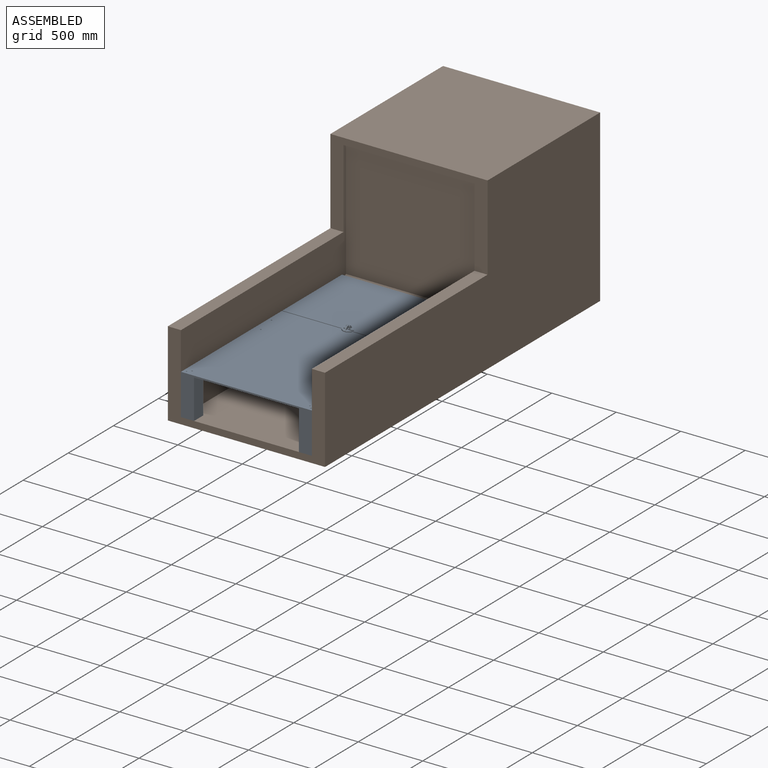
[diagram: assembled view]
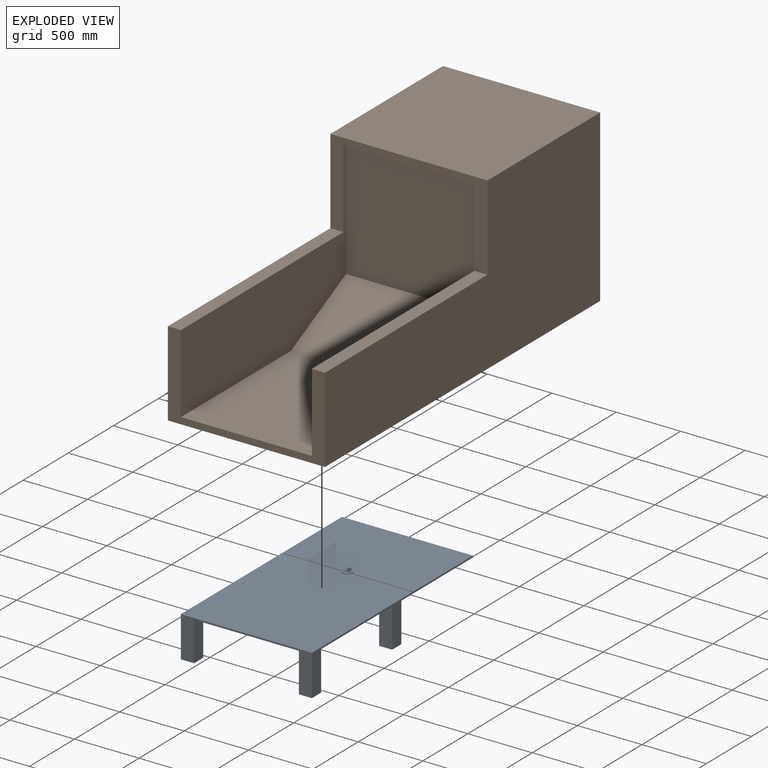
[diagram: exploded view]
GUIDED TOUR — MATED ASSEMBLY WITH SUBASSEMBLIES (Onshape document 716e8d34b6be0348a2c1e24b, AutoMate assembly 716e8d34b6be0348a2c1e24b_19b1c2ab4a5b74f9ab5a983d_846094277d54cac7a10e3b2b_default)

This assembly has 10 component occurrences arranged in 2 top-level units: 1 individual components plus 1 subassembly (S0). The tour has two levels: first the top level, where each subassembly is treated as one rigid unit; then each subassembly is toured internally in its own section (nesting deeper than one subassembly level is flattened into its subassembly's section).

Components are labeled P0..P9 across the whole record; subassembly units are labeled S0..S0. A mate is a constraint between two units; its type names the relative motion it leaves free:
  CYLINDRICAL — leaves both rotation about and translation along the listed axis free,
  FASTENED — locks the two components together rigidly (no relative motion),
  PARALLEL — keeps the two listed directions parallel,
  PLANAR — leaves sliding in the plane through the listed point (normal = the listed direction) and rotation about that normal free,
  REVOLUTE — leaves rotation about the listed axis free (a hinge).
Axis/direction vectors are unit vectors and 'through' points are millimeter coordinates, both in the assembly's world frame.

TOP-LEVEL MATES (between units; each subassembly's internal mates are listed in its own section)
  1. FASTENED "Fastened 1": P2 <-> S0, direction (0.000, 0.000, 1.000) through (-17.55, -673.22, -127.83) mm

TOP-LEVEL ASSEMBLY ORDER
  1. P2 — the base component [order verified]
  2. S0 [order verified]
Order-tag legend:
  [order verified] — this step's position reverses a verified removal order: the component was checked to insert without passing through the ones already placed.

Of the 10 component occurrences, 7 carry the full construction recipe — the FeatureScript program that regenerates the part's solid from scratch; the rest are supplied as boundary geometry only. Each toured unit is shown spotlighted twice — assembled, then exploded with a leader line back to its socket (green = recipe-attached component, orange = geometry-only, blue = subassembly unit; the rest desaturated gray).
NOTE — this tour is split across 2 documents so each fits a 32k-token context. This is document 1: the component sections continue in the remaining 1 document, each repeating the header above.
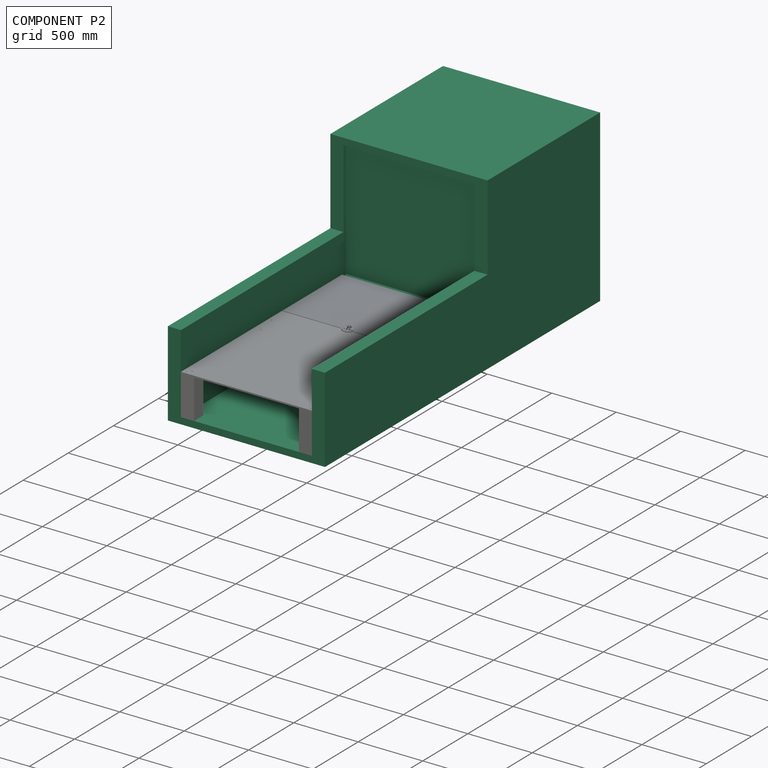
[diagram: component P2 — assembled]
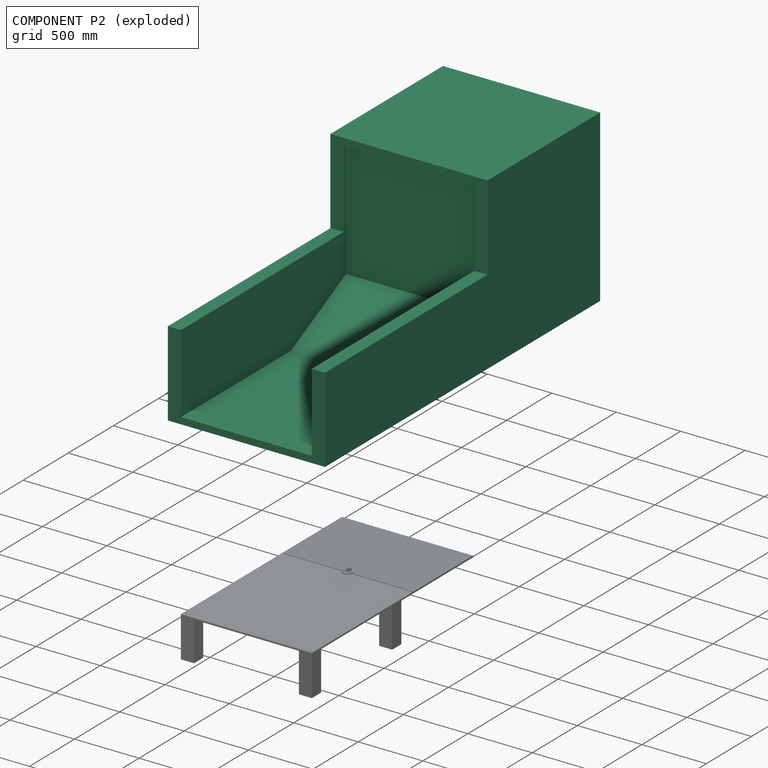
[diagram: component P2 — exploded]
COMPONENT P2 — recipe-attached (CADFS 00644984, mesh-verified: the recipe's output STEP matches this component's geometry to below the mesh-comparison resolution (tessellation chordal tolerance ~5.31 mm)).
Held by: FASTENED mate "Fastened 1" to P0.
Construction recipe (FeatureScript — the CAD program that rebuilds this solid; sketch coordinates are in the units given by the * unit suffixes, e.g. mm):

FeatureScript 1511;
import(path : "onshape/std/geometry.fs", version : "1511.0");
import(path : "onshape/std/common.fs", version : "1511.0");
const mm = millimeter;
const VERTEX = EntityType.VERTEX;
const EDGE = EntityType.EDGE;
const FACE = EntityType.FACE;
const BODY = EntityType.BODY;
function v(x, y){return vector(x, y);}
function OD(order){return orderDisambiguation(order);}
function OSD(set){return originalSetDisambiguation(set);}
function TD(topology){return topologyDisambiguation(topology);}
function TDD(query){return trueDependencyDisambiguation(query);}
function sQuery(a, b, c) {return sketchEntityQuery(a, b, c);}

annotation { "Feature Type Name" : "Feature", "Feature Type Description" : "" }
export const myFeature = defineFeature(function(context is Context, id is Id, definition is map)
    precondition{}
    {
        {
            var Q0;
            Q0=qCreatedBy(makeId("Front.planeOp"),FACE);
            var sketch = newSketch(context, id + "F0", { "sketchPlane" : qUnion([Q0])});
            skLineSegment(sketch, "E0.bottom", {"start": v(609.6, 660.4) * mm, "end": v(-609.6, 660.4) * mm});
            skLineSegment(sketch, "E0.top", {"start": v(609.6, -660.4) * mm, "end": v(-609.6, -660.4) * mm});
            skLineSegment(sketch, "E0.left", {"start": v(609.6, 660.4) * mm, "end": v(609.6, -660.4) * mm});
            skLineSegment(sketch, "E0.right", {"start": v(-609.6, 660.4) * mm, "end": v(-609.6, -660.4) * mm});
            skPoint(sketch, "E0.middle", {"position": v(0, 0) * mm});
            skSolve(sketch);
        }
        {
            var Q0;
            Q0=makeQuery(id+"F0.imprint","IMPRINT",FACE,{"disambiguationData":[TD([[makeQuery(id+"F0.imprint","IMPRINT",EDGE,{"derivedFrom":sQuery(id+"F0.wireOp",EDGE,"E0.bottom")}),1.0]])]});
            extrude(context, id + "F1", {"entities" : qUnion([Q0]), "oppositeDirection" : true, "depth" : 3048 * mm, "offsetDistance" : 25.4 * mm});
        }
        {
            var Q0;
            Q0=makeQuery(id+"F1.opExtrude","CAP_FACE",FACE,{"disambiguationData":[OSD([sQuery(id+"F0.wireOp",EDGE,"E0.bottom"),sQuery(id+"F0.wireOp",EDGE,"E0.top"),sQuery(id+"F0.wireOp",EDGE,"E0.left"),sQuery(id+"F0.wireOp",EDGE,"E0.right")])],"isStart":true});
            var sketch = newSketch(context, id + "F2", { "sketchPlane" : qUnion([Q0])});
            skLineSegment(sketch, "E1.bottom", {"start": v(508, 609.6) * mm, "end": v(-508, 609.6) * mm});
            skLineSegment(sketch, "E1.top", {"start": v(508, -609.6) * mm, "end": v(-508, -609.6) * mm});
            skLineSegment(sketch, "E1.left", {"start": v(508, 609.6) * mm, "end": v(508, -609.6) * mm});
            skLineSegment(sketch, "E1.right", {"start": v(-508, 609.6) * mm, "end": v(-508, -609.6) * mm});
            skPoint(sketch, "E1.middle", {"position": v(0, 0) * mm});
            skSolve(sketch);
        }
        {
            var Q0;
            Q0=makeQuery(id+"F2.imprint","IMPRINT",FACE,{"disambiguationData":[TD([[makeQuery(id+"F2.imprint","IMPRINT",EDGE,{"derivedFrom":sQuery(id+"F2.wireOp",EDGE,"E1.bottom")}),1.0]])]});
            extrude(context, id + "F3", {"entities" : qUnion([Q0]), "operationType" : NewBodyOperationType.REMOVE, "oppositeDirection" : true, "depth" : 1219.2 * mm, "offsetDistance" : 25.4 * mm});
        }
        {
            var Q0;
            Q0=makeQuery(id+"F3.boolean.opBoolean","COPY",FACE,{"derivedFrom":makeQuery(id+"F3.opExtrude","CAP_FACE",FACE,{"disambiguationData":[OSD([sQuery(id+"F2.wireOp",EDGE,"E1.bottom"),sQuery(id+"F2.wireOp",EDGE,"E1.top"),sQuery(id+"F2.wireOp",EDGE,"E1.left"),sQuery(id+"F2.wireOp",EDGE,"E1.right")])],"isStart":false})});
            var sketch = newSketch(context, id + "F4", { "sketchPlane" : qUnion([Q0])});
            skLineSegment(sketch, "E2.bottom", {"start": v(508, 609.6) * mm, "end": v(-508, 609.6) * mm});
            skLineSegment(sketch, "E2.top", {"start": v(508, -304.8) * mm, "end": v(-508, -304.8) * mm});
            skLineSegment(sketch, "E2.left", {"start": v(508, 609.6) * mm, "end": v(508, -304.8) * mm});
            skLineSegment(sketch, "E2.right", {"start": v(-508, 609.6) * mm, "end": v(-508, -304.8) * mm});
            skSolve(sketch);
        }
        {
            var Q0;
            Q0=makeQuery(id+"F4.imprint","IMPRINT",FACE,{"disambiguationData":[TD([[makeQuery(id+"F4.imprint","IMPRINT",EDGE,{"derivedFrom":sQuery(id+"F4.wireOp",EDGE,"E2.bottom")}),1.0]])]});
            extrude(context, id + "F5", {"entities" : qUnion([Q0]), "operationType" : NewBodyOperationType.REMOVE, "oppositeDirection" : true, "depth" : 609.6 * mm, "offsetDistance" : 25.4 * mm});
        }
        {
            var Q0;
            Q0=makeQuery(id+"F5.boolean.opBoolean","MERGE",FACE,{"derivedFrom":[makeQuery(id+"F3.boolean.opBoolean","COPY",FACE,{"derivedFrom":makeQuery(id+"F3.opExtrude","SWEPT_FACE",FACE,{"disambiguationData":[OSD([sQuery(id+"F2.wireOp",EDGE,"E1.right")])]})}),makeQuery(id+"F5.opExtrude","SWEPT_FACE",FACE,{"disambiguationData":[OSD([sQuery(id+"F4.wireOp",EDGE,"E2.right")])]})]});
            var Q1;
            Q1=makeQuery(id+"F5.boolean.opBoolean","MERGE",FACE,{"derivedFrom":[makeQuery(id+"F3.boolean.opBoolean","COPY",FACE,{"derivedFrom":makeQuery(id+"F3.opExtrude","SWEPT_FACE",FACE,{"disambiguationData":[OSD([sQuery(id+"F2.wireOp",EDGE,"E1.left")])]})}),makeQuery(id+"F5.opExtrude","SWEPT_FACE",FACE,{"disambiguationData":[OSD([sQuery(id+"F4.wireOp",EDGE,"E2.left")])]})]});
            cPlane(context, id + "F6", {"entities" : qUnion([Q0, Q1]), "cplaneType" : CPlaneType.MID_PLANE, "offset" : 25.4 * mm, "width" : 152.4 * mm, "height" : 152.4 * mm});
        }
        {
            var Q0;
            Q0=qCreatedBy(id+"F6.planeOp",FACE);
            var sketch = newSketch(context, id + "F7", { "sketchPlane" : qUnion([Q0])});
            skLineSegment(sketch, "E3", {"start": v(0, 0) * mm, "end": v(0, -609.6) * mm});
            skLineSegment(sketch, "E4", {"start": v(0, -609.6) * mm, "end": v(1219.2, -609.6) * mm});
            skLineSegment(sketch, "E5", {"start": v(1219.2, -609.6) * mm, "end": v(1828.8, -304.8) * mm});
            skLineSegment(sketch, "E6", {"start": v(1828.8, -304.8) * mm, "end": v(1828.8, 0) * mm});
            skLineSegment(sketch, "E7", {"start": v(1828.8, 0) * mm, "end": v(0, 0) * mm});
            skSolve(sketch);
        }
        {
            var Q0;
            Q0=makeQuery(id+"F7.imprint","IMPRINT",FACE,{"disambiguationData":[TD([[makeQuery(id+"F7.imprint","IMPRINT",EDGE,{"derivedFrom":sQuery(id+"F7.wireOp",EDGE,"E3")}),1.0]])]});
            extrude(context, id + "F8", {"entities" : qUnion([Q0]), "operationType" : NewBodyOperationType.REMOVE, "oppositeDirection" : true, "depth" : 508 * mm, "offsetDistance" : 25.4 * mm, "hasSecondDirection" : true, "secondDirectionOppositeDirection" : false, "secondDirectionDepth" : 508 * mm});
        }
        {
            var Q0;
            Q0=makeQuery(id+"F1.opExtrude","CAP_FACE",FACE,{"disambiguationData":[OSD([sQuery(id+"F0.wireOp",EDGE,"E0.bottom"),sQuery(id+"F0.wireOp",EDGE,"E0.top"),sQuery(id+"F0.wireOp",EDGE,"E0.left"),sQuery(id+"F0.wireOp",EDGE,"E0.right")])],"isStart":true});
            var sketch = newSketch(context, id + "F9", { "sketchPlane" : qUnion([Q0])});
            skLineSegment(sketch, "E8.bottom", {"start": v(-609.6, 660.4) * mm, "end": v(609.6, 660.4) * mm});
            skLineSegment(sketch, "E8.top", {"start": v(-609.6, 0) * mm, "end": v(609.6, 0) * mm});
            skLineSegment(sketch, "E8.left", {"start": v(-609.6, 660.4) * mm, "end": v(-609.6, 0) * mm});
            skLineSegment(sketch, "E8.right", {"start": v(609.6, 660.4) * mm, "end": v(609.6, 0) * mm});
            skSolve(sketch);
        }
        {
            var Q0;
            Q0 = qSketchRegion(id + "F9", true);
            extrude(context, id + "F10", {"entities" : qUnion([Q0]), "operationType" : NewBodyOperationType.REMOVE, "oppositeDirection" : true, "depth" : 1800.86 * mm, "offsetDistance" : 25.4 * mm});
        }
        {
            var Q0;
            Q0=makeQuery(id+"F3.boolean.opBoolean","COPY",FACE,{"derivedFrom":makeQuery(id+"F3.opExtrude","SWEPT_FACE",FACE,{"disambiguationData":[OSD([sQuery(id+"F2.wireOp",EDGE,"E1.top")])]})});
            var sketch = newSketch(context, id + "F11", { "sketchPlane" : qUnion([Q0])});
            skLineSegment(sketch, "E9.bottom", {"start": v(-508, 0) * mm, "end": v(-457.2, 0) * mm});
            skLineSegment(sketch, "E9.top", {"start": v(-508, 50.8) * mm, "end": v(-457.2, 50.8) * mm});
            skLineSegment(sketch, "E9.left", {"start": v(-508, 0) * mm, "end": v(-508, 50.8) * mm});
            skLineSegment(sketch, "E9.right", {"start": v(-457.2, 0) * mm, "end": v(-457.2, 50.8) * mm});
            skCircle(sketch, "E10", {"center": v(-457.2, 50.8) * mm, "radius": 4.76 * mm});
            skLineSegment(sketch, "E11.bottom", {"start": v(508, 0) * mm, "end": v(457.2, 0) * mm});
            skLineSegment(sketch, "E11.top", {"start": v(508, 50.8) * mm, "end": v(457.2, 50.8) * mm});
            skLineSegment(sketch, "E11.left", {"start": v(508, 0) * mm, "end": v(508, 50.8) * mm});
            skLineSegment(sketch, "E11.right", {"start": v(457.2, 0) * mm, "end": v(457.2, 50.8) * mm});
            skCircle(sketch, "E12", {"center": v(457.2, 50.8) * mm, "radius": 4.76 * mm});
            skSolve(sketch);
        }
        {
            var Q0;
            {var subQ0=sQuery(id+"F11.wireOp",EDGE,"E9.right");var subQ1=sQuery(id+"F11.wireOp",EDGE,"E9.top");var subQ2=makeQuery(id+"F11.imprint","INTERSECT",VERTEX,{"derivedFrom":[subQ1,subQ0]});Q0=makeQuery(id+"F11.imprint","IMPRINT",FACE,{"disambiguationData":[TD([[makeQuery(id+"F11.imprint","IMPRINT",EDGE,{"disambiguationData":[TD([[subQ2,1.0]])],"derivedFrom":subQ1}),1.0]])]});}
            var Q1;
            {var subQ0=sQuery(id+"F11.wireOp",EDGE,"E9.right");var subQ1=sQuery(id+"F11.wireOp",EDGE,"E9.top");var subQ2=makeQuery(id+"F11.imprint","INTERSECT",VERTEX,{"derivedFrom":[subQ1,subQ0]});Q1=makeQuery(id+"F11.imprint","IMPRINT",FACE,{"disambiguationData":[TD([[makeQuery(id+"F11.imprint","IMPRINT",EDGE,{"disambiguationData":[TD([[subQ2,1.0]])],"derivedFrom":subQ1}),-1.0]])]});}
            var Q2;
            {var subQ0=sQuery(id+"F11.wireOp",EDGE,"E11.right");var subQ1=sQuery(id+"F11.wireOp",EDGE,"E11.top");var subQ2=makeQuery(id+"F11.imprint","INTERSECT",VERTEX,{"derivedFrom":[subQ1,subQ0]});Q2=makeQuery(id+"F11.imprint","IMPRINT",FACE,{"disambiguationData":[TD([[makeQuery(id+"F11.imprint","IMPRINT",EDGE,{"disambiguationData":[TD([[subQ2,1.0]])],"derivedFrom":subQ1}),1.0]])]});}
            var Q3;
            {var subQ0=sQuery(id+"F11.wireOp",EDGE,"E11.right");var subQ1=sQuery(id+"F11.wireOp",EDGE,"E11.top");var subQ2=makeQuery(id+"F11.imprint","INTERSECT",VERTEX,{"derivedFrom":[subQ1,subQ0]});Q3=makeQuery(id+"F11.imprint","IMPRINT",FACE,{"disambiguationData":[TD([[makeQuery(id+"F11.imprint","IMPRINT",EDGE,{"disambiguationData":[TD([[subQ2,1.0]])],"derivedFrom":subQ1}),-1.0]])]});}
            extrude(context, id + "F12", {"entities" : qUnion([Q0, Q1, Q2, Q3]), "operationType" : NewBodyOperationType.REMOVE, "oppositeDirection" : true, "depth" : 12.7 * mm, "offsetDistance" : 25.4 * mm});
        }
    });
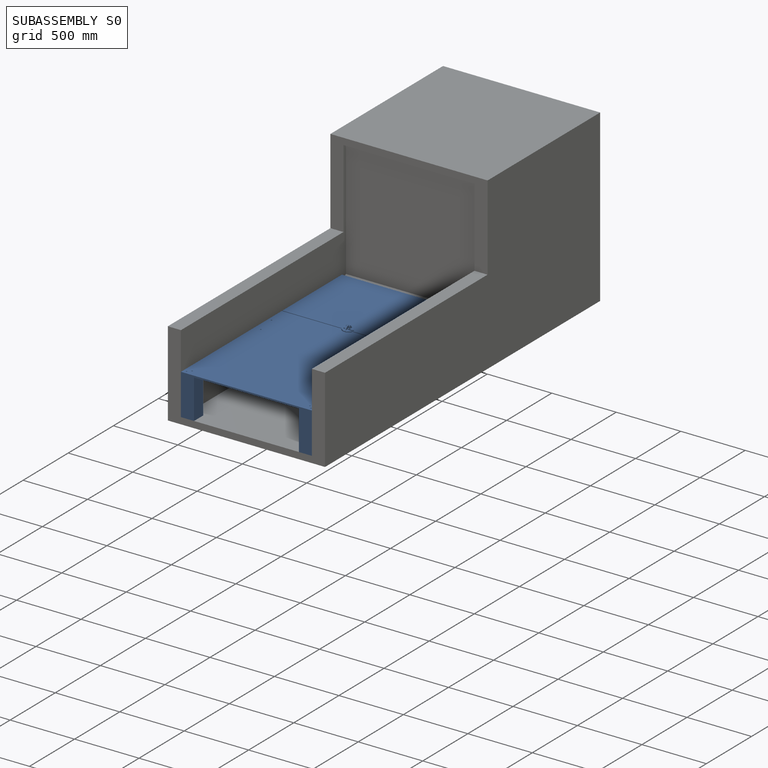
[diagram: subassembly S0 — assembled]
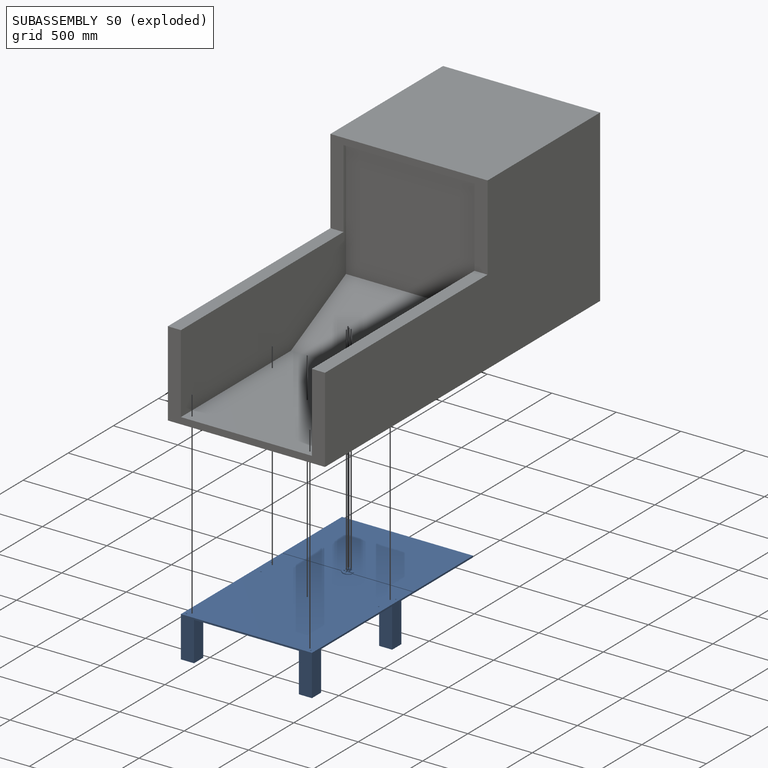
[diagram: subassembly S0 — exploded]
SUBASSEMBLY S0 — 9 components (P0, P1, P3, P4, P5, P6, P7, P8, P9), of which 6 recipe-attached; toured below.
Held by: FASTENED mate "Fastened 1" to P2.
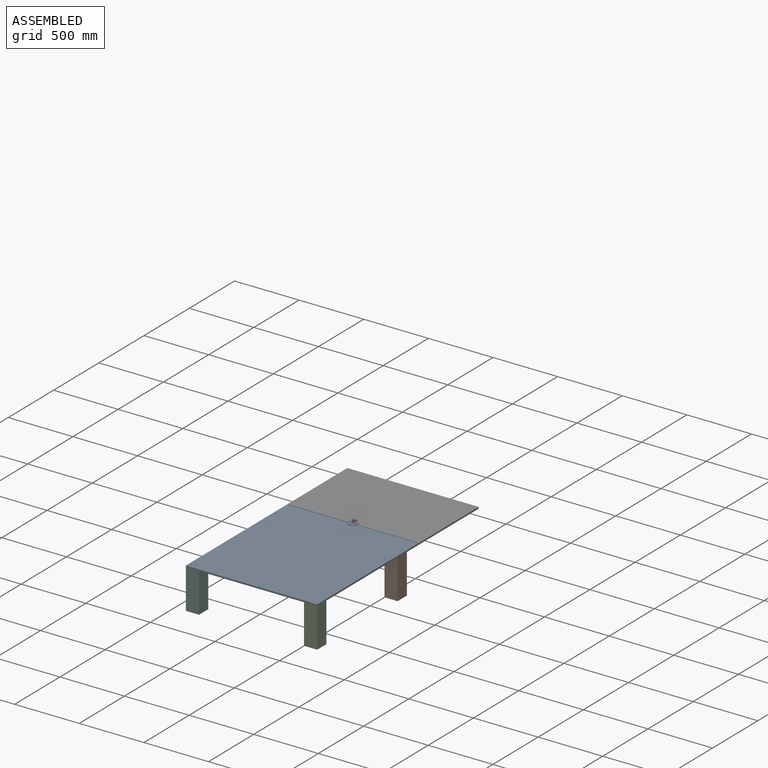
[diagram: subassembly S0 — assembled view]
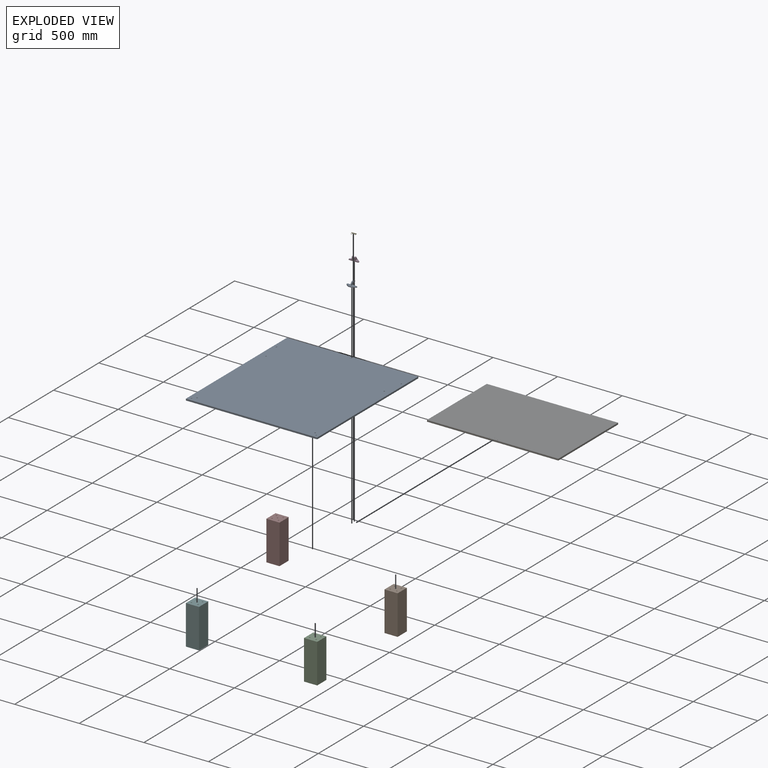
[diagram: subassembly S0 — exploded view]
SUBASSEMBLY S0 TOUR — 9 components, shown here in isolation at its own camera.

INTERNAL MATES
  1. FASTENED "Fastened 1": P0 <-> P9, direction (0.000, 0.000, 1.000) through (409.09, 384.06, 189.67) mm
  2. CYLINDRICAL "Cylindrical 1": P5 <-> P9, axis (-1.000, 0.000, 0.000) through (439.67, 408.82, 215.33) mm
  3. FASTENED "Fastened 5": P1 <-> P0, direction (0.000, 0.000, 1.000) through (922.25, 241.18, 176.97) mm
  4. REVOLUTE "Revolute 1": P9 <-> P4, axis (1.000, 0.000, 0.000) through (443.51, 408.82, 215.33) mm
  5. FASTENED "Fastened 4": P3 <-> P0, direction (0.000, 0.000, 1.000) through (922.25, -698.62, 176.97) mm
  6. FASTENED "Fastened 6": P8 <-> P0, direction (0.000, 0.000, 1.000) through (-42.95, 241.18, 176.97) mm
  7. PLANAR "Planar 1": P5 <-> P4, direction (-1.000, 0.000, 0.000) through (423.79, 408.82, 215.33) mm
  8. FASTENED "Fastened 2": P7 <-> P4, direction (0.000, 0.000, 1.000) through (439.57, 423.17, 189.67) mm
  9. PARALLEL "Parallel 1": P7 <-> P0, direction (0.000, -1.000, 0.000) through (439.57, 399.76, 183.32) mm
  10. FASTENED "Fastened 3": P6 <-> P0, direction (0.000, 0.000, 1.000) through (-42.95, -698.62, 176.97) mm
  11. FASTENED "Fastened 3": P6 <-> P0, direction (0.000, 0.000, 1.000) through (-42.95, -698.62, 176.97) mm
  12. REVOLUTE "Revolute 1": P9 <-> P4, axis (1.000, 0.000, 0.000) through (443.51, 408.82, 215.33) mm
  13. FASTENED "Fastened 2": P7 <-> P4, direction (0.000, 0.000, 1.000) through (439.57, 423.17, 189.67) mm
  14. FASTENED "Fastened 6": P8 <-> P0, direction (0.000, 0.000, 1.000) through (-42.95, 241.18, 176.97) mm
  15. PLANAR "Planar 1": P5 <-> P4, direction (-1.000, 0.000, 0.000) through (423.79, 408.82, 215.33) mm
  16. FASTENED "Fastened 1": P0 <-> P9, direction (0.000, 0.000, 1.000) through (409.09, 384.06, 189.67) mm
  17. CYLINDRICAL "Cylindrical 1": P5 <-> P9, axis (-1.000, 0.000, 0.000) through (439.67, 408.82, 215.33) mm
  18. FASTENED "Fastened 4": P3 <-> P0, direction (0.000, 0.000, 1.000) through (922.25, -698.62, 176.97) mm
  19. PARALLEL "Parallel 1": P7 <-> P0, direction (0.000, -1.000, 0.000) through (439.57, 399.76, 183.32) mm
  20. FASTENED "Fastened 5": P1 <-> P0, direction (0.000, 0.000, 1.000) through (922.25, 241.18, 176.97) mm

ASSEMBLY ORDER (within the subassembly)
  1. P8 — the base component [order verified]
  2. P6 [order verified]
  3. P3 [order verified]
  4. P1 [order verified]
  5. P0 [order verified]
  6. P7 [order verified]
  7. P4 [order verified]
  8. P9 [order verified]
  9. P5 [order verified]
Order-tag legend:
  [order verified] — this step's position reverses a verified removal order: the component was checked to insert without passing through the ones already placed.
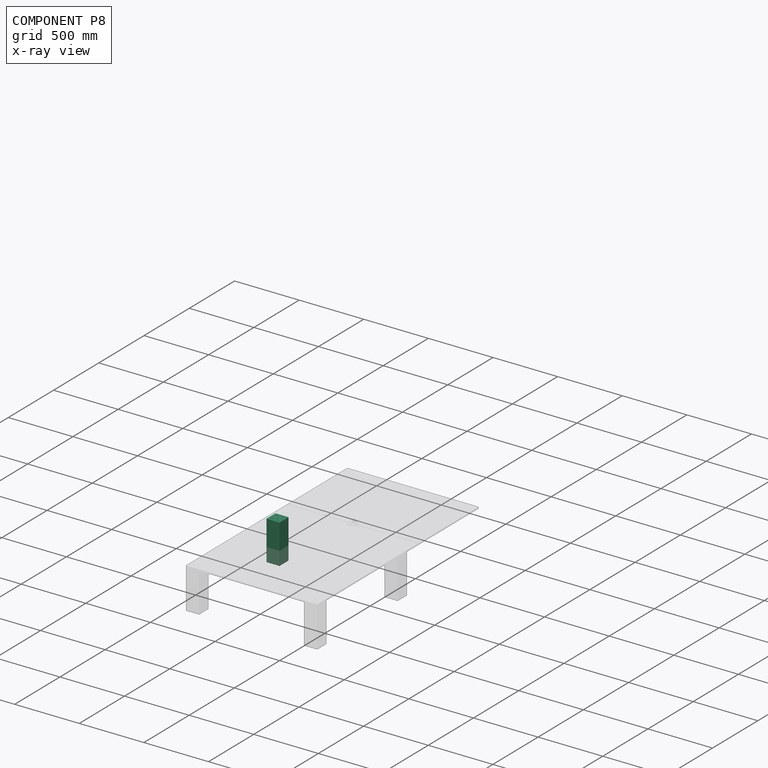
[diagram: component P8 — x-ray view]
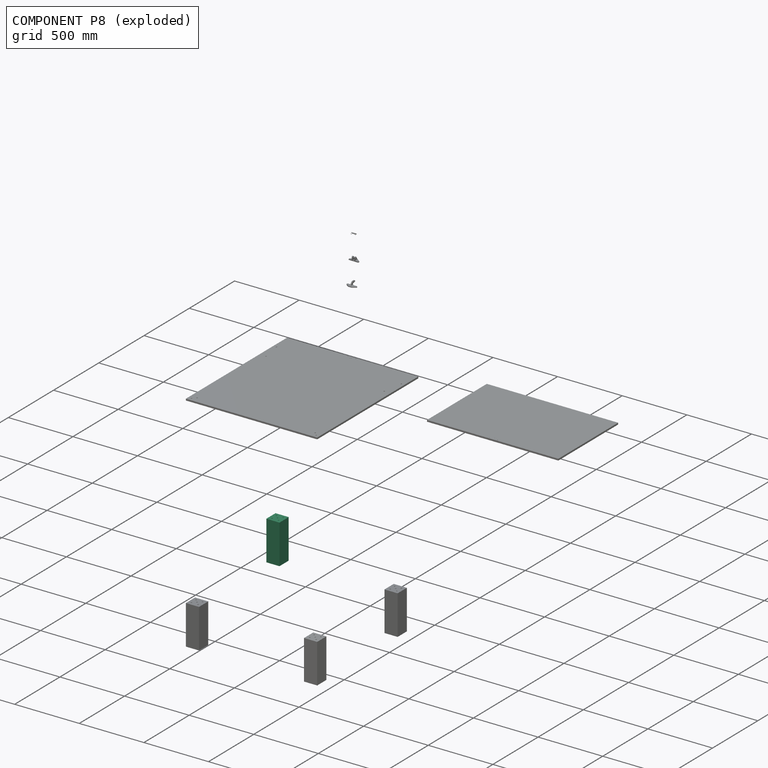
[diagram: component P8 — exploded]
COMPONENT P8 — same part as P1 (CADFS 00644988); its construction recipe is shown at P1.
Held by: FASTENED mate "Fastened 6" to P0; FASTENED mate "Fastened 6" to P0.
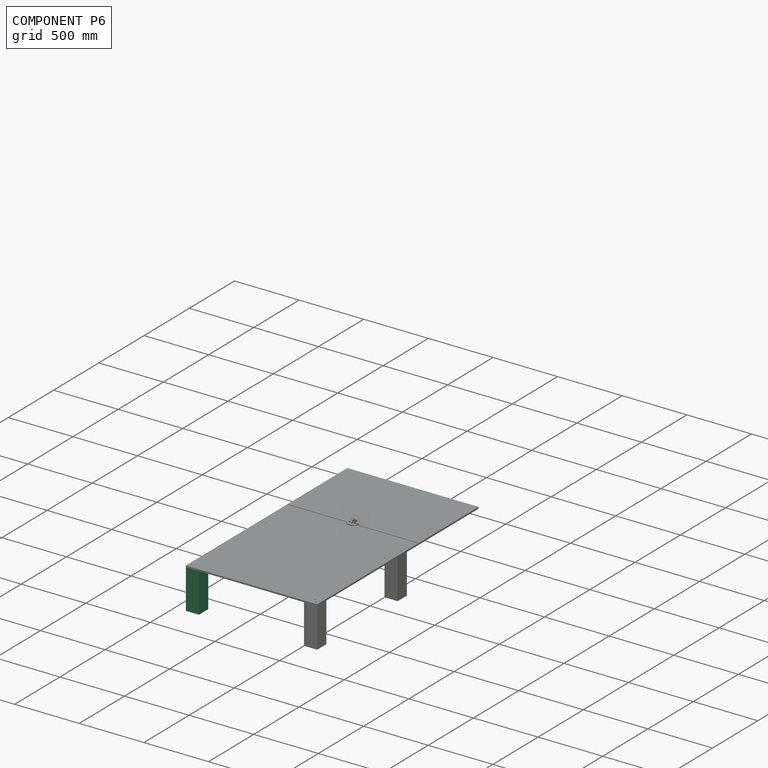
[diagram: component P6 — assembled]
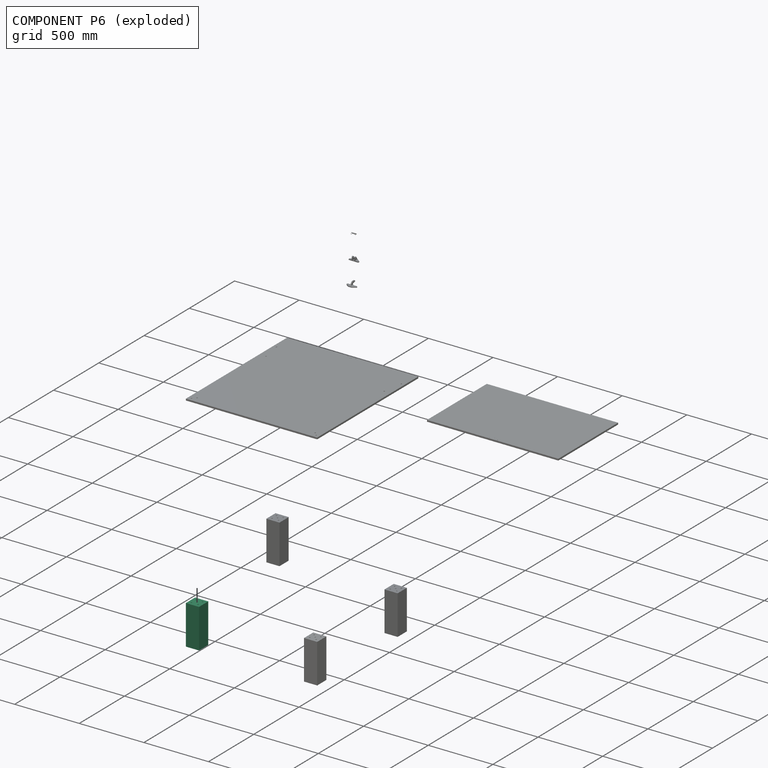
[diagram: component P6 — exploded]
COMPONENT P6 — same part as P1 (CADFS 00644988); its construction recipe is shown at P1.
Held by: FASTENED mate "Fastened 3" to P0; FASTENED mate "Fastened 3" to P0.
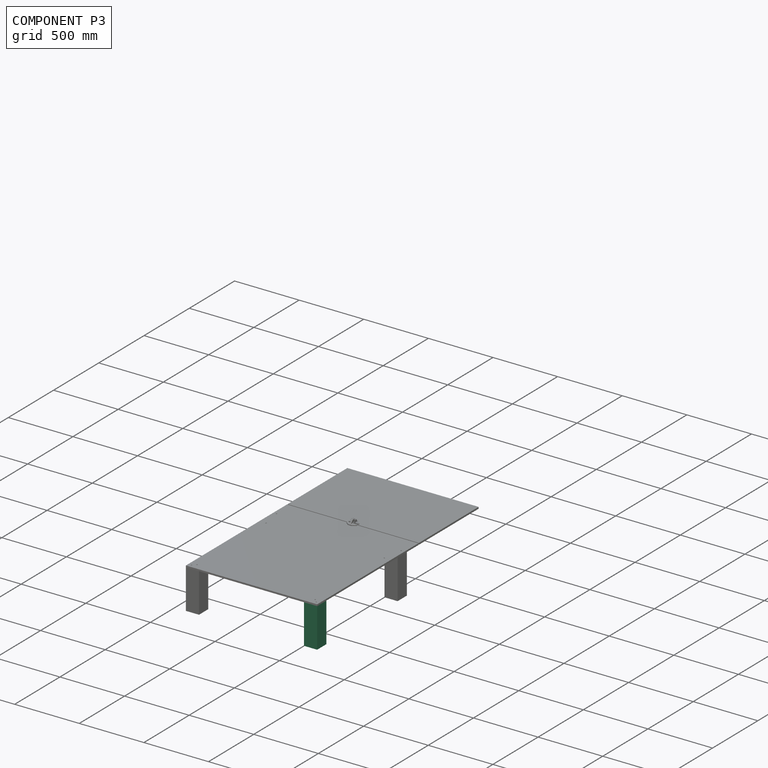
[diagram: component P3 — assembled]
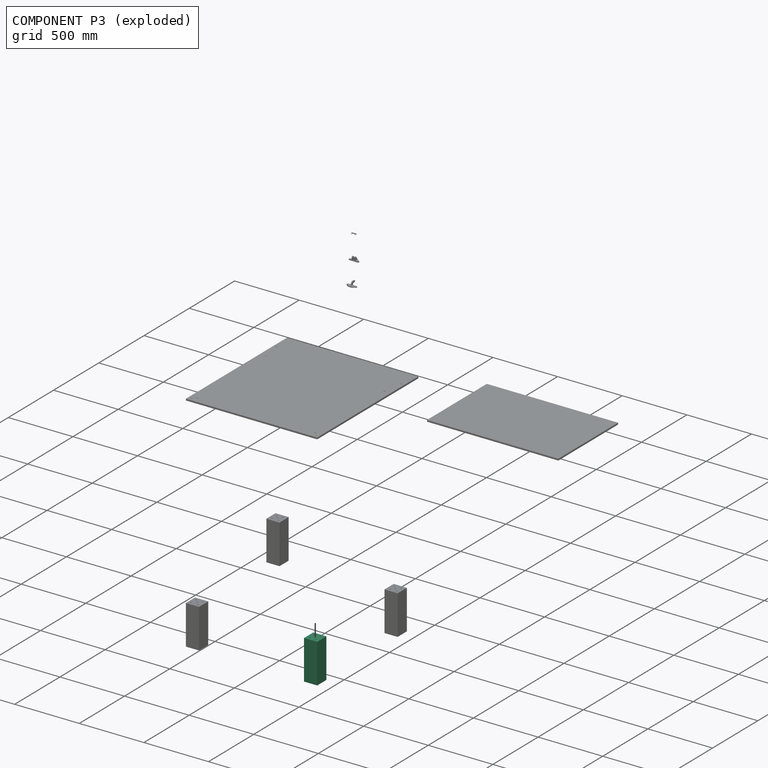
[diagram: component P3 — exploded]
COMPONENT P3 — same part as P1 (CADFS 00644988); its construction recipe is shown at P1.
Held by: FASTENED mate "Fastened 4" to P0; FASTENED mate "Fastened 4" to P0.
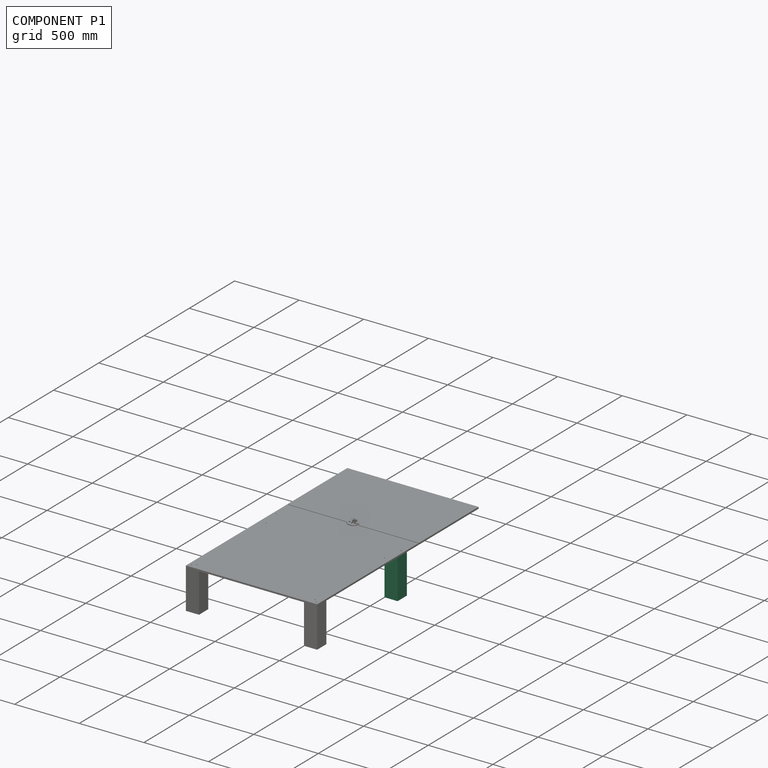
[diagram: component P1 — assembled]
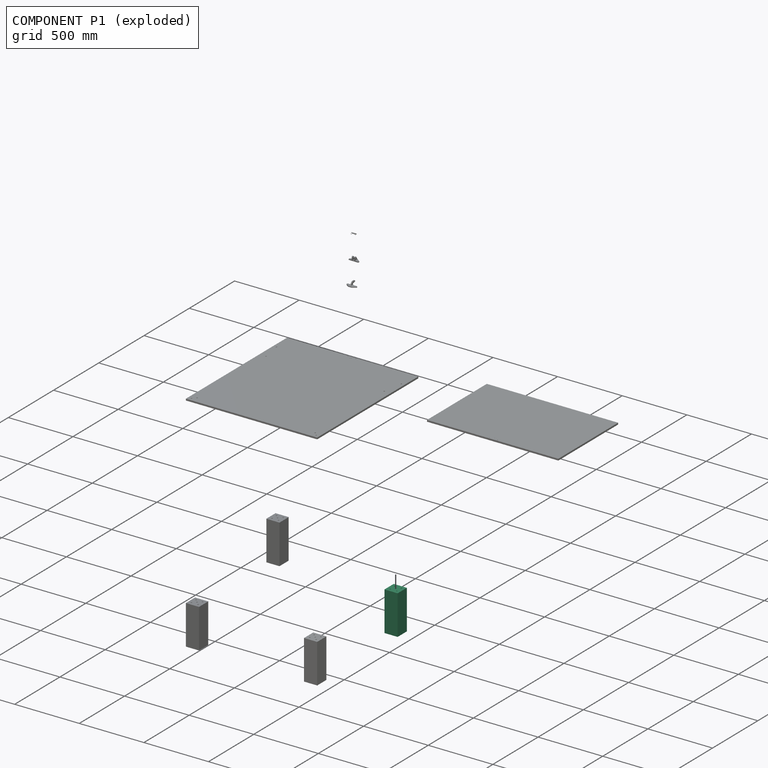
[diagram: component P1 — exploded]
COMPONENT P1 — recipe-attached (CADFS 00644988, mesh-verified: the recipe's output STEP matches this component's geometry to below the mesh-comparison resolution (tessellation chordal tolerance ~0.505 mm)).
Held by: FASTENED mate "Fastened 5" to P0; FASTENED mate "Fastened 5" to P0.
Construction recipe (FeatureScript — the CAD program that rebuilds this solid; sketch coordinates are in the units given by the * unit suffixes, e.g. mm):

FeatureScript 1511;
import(path : "onshape/std/geometry.fs", version : "1511.0");
import(path : "onshape/std/common.fs", version : "1511.0");
const mm = millimeter;
const VERTEX = EntityType.VERTEX;
const EDGE = EntityType.EDGE;
const FACE = EntityType.FACE;
const BODY = EntityType.BODY;
function v(x, y){return vector(x, y);}
function OD(order){return orderDisambiguation(order);}
function OSD(set){return originalSetDisambiguation(set);}
function TD(topology){return topologyDisambiguation(topology);}
function TDD(query){return trueDependencyDisambiguation(query);}
function sQuery(a, b, c) {return sketchEntityQuery(a, b, c);}

annotation { "Feature Type Name" : "Feature", "Feature Type Description" : "" }
export const myFeature = defineFeature(function(context is Context, id is Id, definition is map)
    precondition{}
    {
        {
            var Q0;
            Q0=qCreatedBy(makeId("Top.planeOp"),FACE);
            var sketch = newSketch(context, id + "F0", { "sketchPlane" : qUnion([Q0])});
            skLineSegment(sketch, "E0.bottom", {"start": v(50.8, 50.8) * mm, "end": v(-50.8, 50.8) * mm});
            skLineSegment(sketch, "E0.top", {"start": v(50.8, -50.8) * mm, "end": v(-50.8, -50.8) * mm});
            skLineSegment(sketch, "E0.left", {"start": v(50.8, 50.8) * mm, "end": v(50.8, -50.8) * mm});
            skLineSegment(sketch, "E0.right", {"start": v(-50.8, 50.8) * mm, "end": v(-50.8, -50.8) * mm});
            skPoint(sketch, "E0.middle", {"position": v(0, 0) * mm});
            skSolve(sketch);
        }
        {
            var Q0;
            Q0=makeQuery(id+"F0.imprint","IMPRINT",FACE,{"disambiguationData":[TD([[makeQuery(id+"F0.imprint","IMPRINT",EDGE,{"derivedFrom":sQuery(id+"F0.wireOp",EDGE,"E0.bottom")}),1.0]])]});
            extrude(context, id + "F1", {"entities" : qUnion([Q0]), "depth" : 304.8 * mm, "offsetDistance" : 25.4 * mm});
        }
        {
            var Q0;
            Q0=makeQuery(id+"F1.opExtrude","CAP_FACE",FACE,{"disambiguationData":[OSD([sQuery(id+"F0.wireOp",EDGE,"E0.bottom"),sQuery(id+"F0.wireOp",EDGE,"E0.top"),sQuery(id+"F0.wireOp",EDGE,"E0.left"),sQuery(id+"F0.wireOp",EDGE,"E0.right")])],"isStart":false});
            var sketch = newSketch(context, id + "F2", { "sketchPlane" : qUnion([Q0])});
            skLineSegment(sketch, "E1.bottom", {"start": v(-50.8, -50.8) * mm, "end": v(0, -50.8) * mm});
            skLineSegment(sketch, "E1.top", {"start": v(-50.8, 0) * mm, "end": v(0, 0) * mm});
            skLineSegment(sketch, "E1.left", {"start": v(-50.8, -50.8) * mm, "end": v(-50.8, 0) * mm});
            skLineSegment(sketch, "E1.right", {"start": v(0, -50.8) * mm, "end": v(0, 0) * mm});
            skCircle(sketch, "E2", {"center": v(0, 0) * mm, "radius": 4.76 * mm});
            skCircle(sketch, "E3", {"center": v(-25.4, -25.4) * mm, "radius": 4.76 * mm});
            skPoint(sketch, "E3.centerSnap0", {"position": v(0, -25.4) * mm});
            skPoint(sketch, "E3.centerSnap1", {"position": v(-25.4, 0) * mm});
            skLineSegment(sketch, "E4.bottom", {"start": v(-50.8, 50.8) * mm, "end": v(0, 50.8) * mm});
            skLineSegment(sketch, "E4.left", {"start": v(-50.8, 50.8) * mm, "end": v(-50.8, 0) * mm});
            skLineSegment(sketch, "E4.right", {"start": v(0, 50.8) * mm, "end": v(0, 0) * mm});
            skLineSegment(sketch, "E5.bottom", {"start": v(50.8, 50.8) * mm, "end": v(0, 50.8) * mm});
            skLineSegment(sketch, "E5.top", {"start": v(50.8, 0) * mm, "end": v(0, 0) * mm});
            skLineSegment(sketch, "E5.left", {"start": v(50.8, 50.8) * mm, "end": v(50.8, 0) * mm});
            skLineSegment(sketch, "E6.bottom", {"start": v(50.8, -50.8) * mm, "end": v(0, -50.8) * mm});
            skLineSegment(sketch, "E6.left", {"start": v(50.8, -50.8) * mm, "end": v(50.8, 0) * mm});
            skCircle(sketch, "E7", {"center": v(-25.4, 25.4) * mm, "radius": 4.76 * mm});
            skPoint(sketch, "E7.centerSnap0", {"position": v(0, 25.4) * mm});
            skCircle(sketch, "E8", {"center": v(25.4, 25.4) * mm, "radius": 4.76 * mm});
            skPoint(sketch, "E8.centerSnap0", {"position": v(25.4, 0) * mm});
            skCircle(sketch, "E9", {"center": v(25.4, -25.4) * mm, "radius": 4.76 * mm});
            skSolve(sketch);
        }
        {
            var Q0;
            Q0=makeQuery(id+"F2.imprint","IMPRINT",FACE,{"disambiguationData":[TD([[makeQuery(id+"F2.imprint","IMPRINT",EDGE,{"derivedFrom":sQuery(id+"F2.wireOp",EDGE,"E7")}),1.0]])]});
            var Q1;
            Q1=makeQuery(id+"F2.imprint","IMPRINT",FACE,{"disambiguationData":[TD([[makeQuery(id+"F2.imprint","IMPRINT",EDGE,{"derivedFrom":sQuery(id+"F2.wireOp",EDGE,"E8")}),1.0]])]});
            var Q2;
            Q2=makeQuery(id+"F2.imprint","IMPRINT",FACE,{"disambiguationData":[TD([[makeQuery(id+"F2.imprint","IMPRINT",EDGE,{"derivedFrom":sQuery(id+"F2.wireOp",EDGE,"E9")}),1.0]])]});
            var Q3;
            {var subQ0=sQuery(id+"F2.wireOp",EDGE,"E5.top");var subQ1=sQuery(id+"F2.wireOp",EDGE,"E2");var subQ2=makeQuery(id+"F2.imprint","INTERSECT",VERTEX,{"derivedFrom":[subQ1,subQ0]});Q3=makeQuery(id+"F2.imprint","IMPRINT",FACE,{"disambiguationData":[TD([[makeQuery(id+"F2.imprint","IMPRINT",EDGE,{"disambiguationData":[TD([[subQ2,1.0]])],"derivedFrom":subQ1}),1.0]])]});}
            var Q4;
            {var subQ0=sQuery(id+"F2.wireOp",EDGE,"E4.right");var subQ1=sQuery(id+"F2.wireOp",EDGE,"E2");var subQ2=makeQuery(id+"F2.imprint","INTERSECT",VERTEX,{"derivedFrom":[subQ1,subQ0]});Q4=makeQuery(id+"F2.imprint","IMPRINT",FACE,{"disambiguationData":[TD([[makeQuery(id+"F2.imprint","IMPRINT",EDGE,{"disambiguationData":[TD([[subQ2,1.0]])],"derivedFrom":subQ1}),1.0]])]});}
            var Q5;
            {var subQ0=sQuery(id+"F2.wireOp",EDGE,"E4.right");var subQ1=sQuery(id+"F2.wireOp",EDGE,"E2");var subQ2=makeQuery(id+"F2.imprint","INTERSECT",VERTEX,{"derivedFrom":[subQ1,subQ0]});Q5=makeQuery(id+"F2.imprint","IMPRINT",FACE,{"disambiguationData":[TD([[makeQuery(id+"F2.imprint","IMPRINT",EDGE,{"disambiguationData":[TD([[subQ2,-1.0]])],"derivedFrom":subQ1}),1.0]])]});}
            var Q6;
            {var subQ0=sQuery(id+"F2.wireOp",EDGE,"E1.top");var subQ1=sQuery(id+"F2.wireOp",EDGE,"E2");var subQ2=makeQuery(id+"F2.imprint","INTERSECT",VERTEX,{"derivedFrom":[subQ1,subQ0]});Q6=makeQuery(id+"F2.imprint","IMPRINT",FACE,{"disambiguationData":[TD([[makeQuery(id+"F2.imprint","IMPRINT",EDGE,{"disambiguationData":[TD([[subQ2,-1.0]])],"derivedFrom":subQ1}),1.0]])]});}
            var Q7;
            Q7=makeQuery(id+"F2.imprint","IMPRINT",FACE,{"disambiguationData":[TD([[makeQuery(id+"F2.imprint","IMPRINT",EDGE,{"derivedFrom":sQuery(id+"F2.wireOp",EDGE,"E3")}),1.0]])]});
            extrude(context, id + "F3", {"entities" : qUnion([Q0, Q1, Q2, Q3, Q4, Q5, Q6, Q7]), "operationType" : NewBodyOperationType.REMOVE, "oppositeDirection" : true, "depth" : 25.4 * mm, "offsetDistance" : 25.4 * mm});
        }
        {
            var Q0;
            Q0=makeQuery(id+"F1.opExtrude","CAP_FACE",FACE,{"disambiguationData":[OSD([sQuery(id+"F0.wireOp",EDGE,"E0.bottom"),sQuery(id+"F0.wireOp",EDGE,"E0.top"),sQuery(id+"F0.wireOp",EDGE,"E0.left"),sQuery(id+"F0.wireOp",EDGE,"E0.right")])],"isStart":true});
            var sketch = newSketch(context, id + "F4", { "sketchPlane" : qUnion([Q0])});
            skLineSegment(sketch, "E10.bottom", {"start": v(-50.8, 50.8) * mm, "end": v(0, 50.8) * mm});
            skLineSegment(sketch, "E10.top", {"start": v(-50.8, 0) * mm, "end": v(0, 0) * mm});
            skLineSegment(sketch, "E10.left", {"start": v(-50.8, 50.8) * mm, "end": v(-50.8, 0) * mm});
            skLineSegment(sketch, "E10.right", {"start": v(0, 50.8) * mm, "end": v(0, 0) * mm});
            skLineSegment(sketch, "E11.bottom", {"start": v(50.8, 50.8) * mm, "end": v(0, 50.8) * mm});
            skLineSegment(sketch, "E11.top", {"start": v(50.8, 0) * mm, "end": v(0, 0) * mm});
            skLineSegment(sketch, "E11.left", {"start": v(50.8, 50.8) * mm, "end": v(50.8, 0) * mm});
            skLineSegment(sketch, "E12.bottom", {"start": v(50.8, -50.8) * mm, "end": v(0, -50.8) * mm});
            skLineSegment(sketch, "E12.left", {"start": v(50.8, -50.8) * mm, "end": v(50.8, 0) * mm});
            skLineSegment(sketch, "E12.right", {"start": v(0, -50.8) * mm, "end": v(0, 0) * mm});
            skLineSegment(sketch, "E13.bottom", {"start": v(-50.8, -50.8) * mm, "end": v(0, -50.8) * mm});
            skLineSegment(sketch, "E13.left", {"start": v(-50.8, -50.8) * mm, "end": v(-50.8, 0) * mm});
            skCircle(sketch, "E14", {"center": v(0, 0) * mm, "radius": 4.76 * mm});
            skCircle(sketch, "E15", {"center": v(-25.4, -25.4) * mm, "radius": 4.76 * mm});
            skPoint(sketch, "E15.centerSnap0", {"position": v(0, -25.4) * mm});
            skPoint(sketch, "E15.centerSnap1", {"position": v(-25.4, 0) * mm});
            skCircle(sketch, "E16", {"center": v(25.4, -25.4) * mm, "radius": 4.76 * mm});
            skPoint(sketch, "E16.centerSnap0", {"position": v(25.4, 0) * mm});
            skCircle(sketch, "E17", {"center": v(25.4, 25.4) * mm, "radius": 4.76 * mm});
            skPoint(sketch, "E17.centerSnap0", {"position": v(0, 25.4) * mm});
            skCircle(sketch, "E18", {"center": v(-25.4, 25.4) * mm, "radius": 4.76 * mm});
            skSolve(sketch);
        }
        {
            var Q0;
            Q0=makeQuery(id+"F4.imprint","IMPRINT",FACE,{"disambiguationData":[TD([[makeQuery(id+"F4.imprint","IMPRINT",EDGE,{"derivedFrom":sQuery(id+"F4.wireOp",EDGE,"E18")}),1.0]])]});
            var Q1;
            Q1=makeQuery(id+"F4.imprint","IMPRINT",FACE,{"disambiguationData":[TD([[makeQuery(id+"F4.imprint","IMPRINT",EDGE,{"derivedFrom":sQuery(id+"F4.wireOp",EDGE,"E17")}),1.0]])]});
            var Q2;
            Q2=makeQuery(id+"F4.imprint","IMPRINT",FACE,{"disambiguationData":[TD([[makeQuery(id+"F4.imprint","IMPRINT",EDGE,{"derivedFrom":sQuery(id+"F4.wireOp",EDGE,"E16")}),1.0]])]});
            var Q3;
            Q3=makeQuery(id+"F4.imprint","IMPRINT",FACE,{"disambiguationData":[TD([[makeQuery(id+"F4.imprint","IMPRINT",EDGE,{"derivedFrom":sQuery(id+"F4.wireOp",EDGE,"E15")}),1.0]])]});
            var Q4;
            {var subQ1=sQuery(id+"F4.wireOp",EDGE,"E10.top");var subQ3=sQuery(id+"F4.wireOp",EDGE,"E14");var subQ4=makeQuery(id+"F4.imprint","INTERSECT",VERTEX,{"derivedFrom":[subQ1,subQ3]});Q4=makeQuery(id+"F4.imprint","IMPRINT",FACE,{"disambiguationData":[TD([[makeQuery(id+"F4.imprint","IMPRINT",EDGE,{"disambiguationData":[TD([[subQ4,-1.0]])],"derivedFrom":subQ3}),1.0]])]});}
            var Q5;
            {var subQ1=sQuery(id+"F4.wireOp",EDGE,"E10.right");var subQ3=sQuery(id+"F4.wireOp",EDGE,"E14");var subQ4=makeQuery(id+"F4.imprint","INTERSECT",VERTEX,{"derivedFrom":[subQ1,subQ3]});Q5=makeQuery(id+"F4.imprint","IMPRINT",FACE,{"disambiguationData":[TD([[makeQuery(id+"F4.imprint","IMPRINT",EDGE,{"disambiguationData":[TD([[subQ4,-1.0]])],"derivedFrom":subQ3}),1.0]])]});}
            var Q6;
            {var subQ1=sQuery(id+"F4.wireOp",EDGE,"E10.right");var subQ3=sQuery(id+"F4.wireOp",EDGE,"E14");var subQ4=makeQuery(id+"F4.imprint","INTERSECT",VERTEX,{"derivedFrom":[subQ1,subQ3]});Q6=makeQuery(id+"F4.imprint","IMPRINT",FACE,{"disambiguationData":[TD([[makeQuery(id+"F4.imprint","IMPRINT",EDGE,{"disambiguationData":[TD([[subQ4,1.0]])],"derivedFrom":subQ3}),1.0]])]});}
            var Q7;
            {var subQ1=sQuery(id+"F4.wireOp",EDGE,"E11.top");var subQ3=sQuery(id+"F4.wireOp",EDGE,"E14");var subQ4=makeQuery(id+"F4.imprint","INTERSECT",VERTEX,{"derivedFrom":[subQ1,subQ3]});Q7=makeQuery(id+"F4.imprint","IMPRINT",FACE,{"disambiguationData":[TD([[makeQuery(id+"F4.imprint","IMPRINT",EDGE,{"disambiguationData":[TD([[subQ4,1.0]])],"derivedFrom":subQ3}),1.0]])]});}
            extrude(context, id + "F5", {"entities" : qUnion([Q0, Q1, Q2, Q3, Q4, Q5, Q6, Q7]), "operationType" : NewBodyOperationType.REMOVE, "oppositeDirection" : true, "depth" : 25.4 * mm, "offsetDistance" : 25.4 * mm});
        }
    });
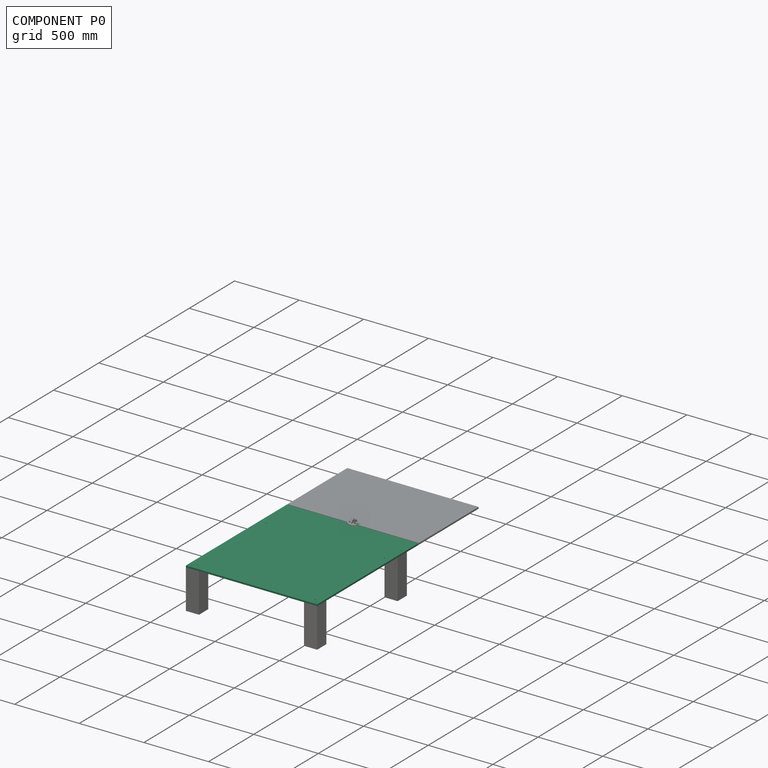
[diagram: component P0 — assembled]
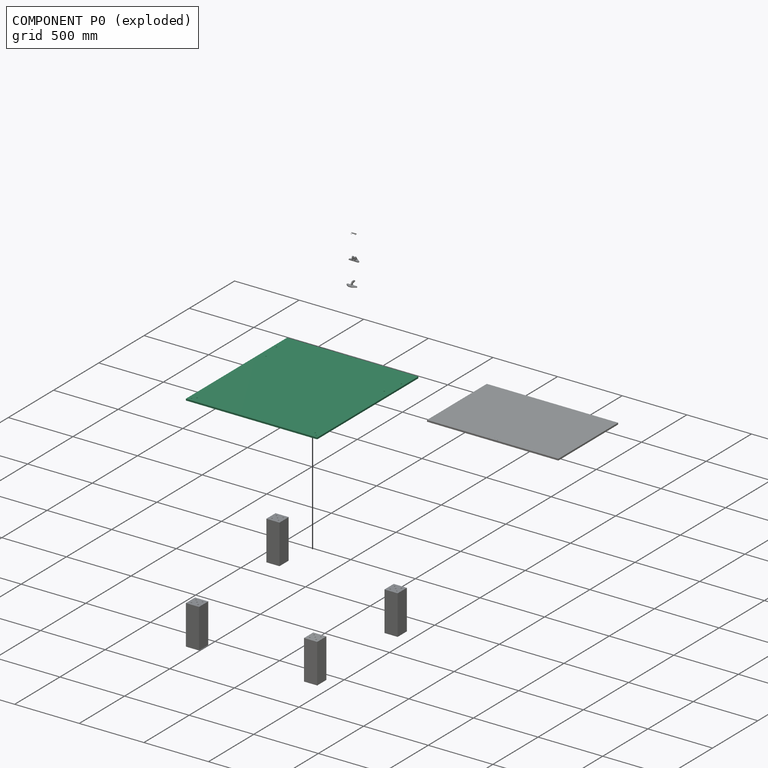
[diagram: component P0 — exploded]
COMPONENT P0 — recipe-attached (CADFS 00644986, mesh-verified: the recipe's output STEP matches this component's geometry to below the mesh-comparison resolution (tessellation chordal tolerance ~2.27 mm)).
Held by: FASTENED mate "Fastened 1" to P9; FASTENED mate "Fastened 5" to P1; FASTENED mate "Fastened 4" to P3; FASTENED mate "Fastened 6" to P8; PARALLEL mate "Parallel 1" to P7; FASTENED mate "Fastened 3" to P6; FASTENED mate "Fastened 3" to P6; FASTENED mate "Fastened 6" to P8; FASTENED mate "Fastened 1" to P9; FASTENED mate "Fastened 4" to P3; PARALLEL mate "Parallel 1" to P7; FASTENED mate "Fastened 5" to P1.
Construction recipe (FeatureScript — the CAD program that rebuilds this solid; sketch coordinates are in the units given by the * unit suffixes, e.g. mm):

FeatureScript 1511;
import(path : "onshape/std/geometry.fs", version : "1511.0");
import(path : "onshape/std/common.fs", version : "1511.0");
const mm = millimeter;
const VERTEX = EntityType.VERTEX;
const EDGE = EntityType.EDGE;
const FACE = EntityType.FACE;
const BODY = EntityType.BODY;
function v(x, y){return vector(x, y);}
function OD(order){return orderDisambiguation(order);}
function OSD(set){return originalSetDisambiguation(set);}
function TD(topology){return topologyDisambiguation(topology);}
function TDD(query){return trueDependencyDisambiguation(query);}
function sQuery(a, b, c) {return sketchEntityQuery(a, b, c);}

annotation { "Feature Type Name" : "Feature", "Feature Type Description" : "" }
export const myFeature = defineFeature(function(context is Context, id is Id, definition is map)
    precondition{}
    {
        {
            var Q0;
            Q0=qCreatedBy(makeId("Top.planeOp"),FACE);
            var sketch = newSketch(context, id + "F0", { "sketchPlane" : qUnion([Q0])});
            skLineSegment(sketch, "E0.bottom", {"start": v(508, -558.8) * mm, "end": v(-508, -558.8) * mm});
            skLineSegment(sketch, "E0.top", {"start": v(508, 558.8) * mm, "end": v(-508, 558.8) * mm});
            skLineSegment(sketch, "E0.left", {"start": v(508, -558.8) * mm, "end": v(508, 558.8) * mm});
            skLineSegment(sketch, "E0.right", {"start": v(-508, -558.8) * mm, "end": v(-508, 558.8) * mm});
            skPoint(sketch, "E0.middle", {"position": v(0, 0) * mm});
            skSolve(sketch);
        }
        {
            var Q0;
            Q0=makeQuery(id+"F0.imprint","IMPRINT",FACE,{"disambiguationData":[TD([[makeQuery(id+"F0.imprint","IMPRINT",EDGE,{"derivedFrom":sQuery(id+"F0.wireOp",EDGE,"E0.bottom")}),-1.0]])]});
            extrude(context, id + "F1", {"entities" : qUnion([Q0]), "depth" : 12.7 * mm, "offsetDistance" : 25.4 * mm});
        }
        {
            var Q0;
            Q0=makeQuery(id+"F1.opExtrude","CAP_FACE",FACE,{"disambiguationData":[OSD([sQuery(id+"F0.wireOp",EDGE,"E0.bottom"),sQuery(id+"F0.wireOp",EDGE,"E0.top"),sQuery(id+"F0.wireOp",EDGE,"E0.left"),sQuery(id+"F0.wireOp",EDGE,"E0.right")])],"isStart":false});
            var sketch = newSketch(context, id + "F2", { "sketchPlane" : qUnion([Q0])});
            skLineSegment(sketch, "E1.bottom", {"start": v(-508, 558.8) * mm, "end": v(0, 558.8) * mm});
            skLineSegment(sketch, "E1.top", {"start": v(-508, 552.45) * mm, "end": v(0, 552.45) * mm});
            skLineSegment(sketch, "E1.left", {"start": v(-508, 558.8) * mm, "end": v(-508, 552.45) * mm});
            skLineSegment(sketch, "E1.right", {"start": v(0, 558.8) * mm, "end": v(0, 552.45) * mm});
            skLineSegment(sketch, "E2.bottom", {"start": v(30.56, 568.33) * mm, "end": v(-30.56, 568.33) * mm});
            skLineSegment(sketch, "E2.top", {"start": v(30.56, 549.28) * mm, "end": v(-30.56, 549.28) * mm});
            skLineSegment(sketch, "E2.left", {"start": v(30.56, 568.33) * mm, "end": v(30.56, 549.28) * mm});
            skLineSegment(sketch, "E2.right", {"start": v(-30.56, 568.33) * mm, "end": v(-30.56, 549.28) * mm});
            skPoint(sketch, "E2.middle", {"position": v(0, 558.8) * mm});
            skCircle(sketch, "E3", {"center": v(-30.56, 549.28) * mm, "radius": 2.38 * mm});
            skCircle(sketch, "E4", {"center": v(30.56, 549.28) * mm, "radius": 2.38 * mm});
            skLineSegment(sketch, "E5.bottom", {"start": v(12.7, 555.62) * mm, "end": v(-12.7, 555.62) * mm});
            skLineSegment(sketch, "E5.top", {"start": v(12.7, 549.28) * mm, "end": v(-12.7, 549.28) * mm});
            skLineSegment(sketch, "E5.left", {"start": v(12.7, 555.62) * mm, "end": v(12.7, 549.28) * mm});
            skLineSegment(sketch, "E5.right", {"start": v(-12.7, 555.62) * mm, "end": v(-12.7, 549.28) * mm});
            skPoint(sketch, "E5.middle", {"position": v(0, 552.45) * mm});
            skLineSegment(sketch, "E6", {"start": v(-30.56, 549.28) * mm, "end": v(-30.56, 538.16) * mm});
            skLineSegment(sketch, "E7", {"start": v(-30.56, 538.16) * mm, "end": v(-5.16, 538.16) * mm});
            skLineSegment(sketch, "E8", {"start": v(30.56, 549.28) * mm, "end": v(30.56, 538.16) * mm});
            skLineSegment(sketch, "E9", {"start": v(30.56, 538.16) * mm, "end": v(5.16, 538.16) * mm});
            skLineSegment(sketch, "E10", {"start": v(5.16, 538.16) * mm, "end": v(-5.16, 538.16) * mm});
            skCircle(sketch, "E11", {"center": v(-5.16, 538.16) * mm, "radius": 2.38 * mm});
            skCircle(sketch, "E12", {"center": v(5.16, 538.16) * mm, "radius": 2.38 * mm});
            skSolve(sketch);
        }
        {
            var Q0;
            {var subQ1=sQuery(id+"F2.wireOp",EDGE,"E2.right");var subQ3=sQuery(id+"F2.wireOp",EDGE,"E3");var subQ4=makeQuery(id+"F2.imprint","INTERSECT",VERTEX,{"derivedFrom":[subQ1,subQ3]});Q0=makeQuery(id+"F2.imprint","IMPRINT",FACE,{"disambiguationData":[TD([[makeQuery(id+"F2.imprint","IMPRINT",EDGE,{"disambiguationData":[TD([[subQ4,-1.0]])],"derivedFrom":subQ3}),1.0]])]});}
            var Q1;
            {var subQ1=sQuery(id+"F2.wireOp",EDGE,"E2.top");var subQ3=sQuery(id+"F2.wireOp",EDGE,"E3");var subQ4=makeQuery(id+"F2.imprint","INTERSECT",VERTEX,{"derivedFrom":[subQ1,subQ3]});Q1=makeQuery(id+"F2.imprint","IMPRINT",FACE,{"disambiguationData":[TD([[makeQuery(id+"F2.imprint","IMPRINT",EDGE,{"disambiguationData":[TD([[subQ4,-1.0]])],"derivedFrom":subQ3}),1.0]])]});}
            var Q2;
            {var subQ1=sQuery(id+"F2.wireOp",EDGE,"E2.top");var subQ3=sQuery(id+"F2.wireOp",EDGE,"E3");var subQ4=makeQuery(id+"F2.imprint","INTERSECT",VERTEX,{"derivedFrom":[subQ1,subQ3]});Q2=makeQuery(id+"F2.imprint","IMPRINT",FACE,{"disambiguationData":[TD([[makeQuery(id+"F2.imprint","IMPRINT",EDGE,{"disambiguationData":[TD([[subQ4,1.0]])],"derivedFrom":subQ3}),1.0]])]});}
            var Q3;
            {var subQ0=sQuery(id+"F2.wireOp",EDGE,"E10");var subQ1=sQuery(id+"F2.wireOp",EDGE,"E7");var subQ2=makeQuery(id+"F2.imprint","INTERSECT",VERTEX,{"derivedFrom":[subQ1,subQ0]});Q3=makeQuery(id+"F2.imprint","IMPRINT",FACE,{"disambiguationData":[TD([[makeQuery(id+"F2.imprint","IMPRINT",EDGE,{"disambiguationData":[TD([[subQ2,1.0]])],"derivedFrom":subQ1}),-1.0]])]});}
            var Q4;
            {var subQ0=sQuery(id+"F2.wireOp",EDGE,"E10");var subQ1=sQuery(id+"F2.wireOp",EDGE,"E7");var subQ2=makeQuery(id+"F2.imprint","INTERSECT",VERTEX,{"derivedFrom":[subQ1,subQ0]});Q4=makeQuery(id+"F2.imprint","IMPRINT",FACE,{"disambiguationData":[TD([[makeQuery(id+"F2.imprint","IMPRINT",EDGE,{"disambiguationData":[TD([[subQ2,1.0]])],"derivedFrom":subQ1}),1.0]])]});}
            var Q5;
            {var subQ0=sQuery(id+"F2.wireOp",EDGE,"E10");var subQ1=sQuery(id+"F2.wireOp",EDGE,"E9");var subQ2=makeQuery(id+"F2.imprint","INTERSECT",VERTEX,{"derivedFrom":[subQ1,subQ0]});Q5=makeQuery(id+"F2.imprint","IMPRINT",FACE,{"disambiguationData":[TD([[makeQuery(id+"F2.imprint","IMPRINT",EDGE,{"disambiguationData":[TD([[subQ2,1.0]])],"derivedFrom":subQ1}),-1.0]])]});}
            var Q6;
            {var subQ0=sQuery(id+"F2.wireOp",EDGE,"E10");var subQ1=sQuery(id+"F2.wireOp",EDGE,"E9");var subQ2=makeQuery(id+"F2.imprint","INTERSECT",VERTEX,{"derivedFrom":[subQ1,subQ0]});Q6=makeQuery(id+"F2.imprint","IMPRINT",FACE,{"disambiguationData":[TD([[makeQuery(id+"F2.imprint","IMPRINT",EDGE,{"disambiguationData":[TD([[subQ2,1.0]])],"derivedFrom":subQ1}),1.0]])]});}
            var Q7;
            {var subQ1=sQuery(id+"F2.wireOp",EDGE,"E2.top");var subQ3=sQuery(id+"F2.wireOp",EDGE,"E4");var subQ4=makeQuery(id+"F2.imprint","INTERSECT",VERTEX,{"derivedFrom":[subQ1,subQ3]});Q7=makeQuery(id+"F2.imprint","IMPRINT",FACE,{"disambiguationData":[TD([[makeQuery(id+"F2.imprint","IMPRINT",EDGE,{"disambiguationData":[TD([[subQ4,1.0]])],"derivedFrom":subQ3}),1.0]])]});}
            var Q8;
            {var subQ1=sQuery(id+"F2.wireOp",EDGE,"E2.top");var subQ3=sQuery(id+"F2.wireOp",EDGE,"E4");var subQ4=makeQuery(id+"F2.imprint","INTERSECT",VERTEX,{"derivedFrom":[subQ1,subQ3]});Q8=makeQuery(id+"F2.imprint","IMPRINT",FACE,{"disambiguationData":[TD([[makeQuery(id+"F2.imprint","IMPRINT",EDGE,{"disambiguationData":[TD([[subQ4,-1.0]])],"derivedFrom":subQ3}),1.0]])]});}
            var Q9;
            {var subQ1=sQuery(id+"F2.wireOp",EDGE,"E2.left");var subQ3=sQuery(id+"F2.wireOp",EDGE,"E4");var subQ4=makeQuery(id+"F2.imprint","INTERSECT",VERTEX,{"derivedFrom":[subQ1,subQ3]});Q9=makeQuery(id+"F2.imprint","IMPRINT",FACE,{"disambiguationData":[TD([[makeQuery(id+"F2.imprint","IMPRINT",EDGE,{"disambiguationData":[TD([[subQ4,1.0]])],"derivedFrom":subQ3}),1.0]])]});}
            var Q10;
            {var subQ1=sQuery(id+"F2.wireOp",EDGE,"E1.top");var subQ3=sQuery(id+"F2.wireOp",EDGE,"E3");var subQ4=makeQuery(id+"F2.imprint","INTERSECT",VERTEX,{"derivedFrom":[subQ1,subQ3]});Q10=makeQuery(id+"F2.imprint","IMPRINT",FACE,{"disambiguationData":[TD([[makeQuery(id+"F2.imprint","IMPRINT",EDGE,{"disambiguationData":[TD([[subQ4,-1.0]])],"derivedFrom":subQ3}),1.0]])]});}
            extrude(context, id + "F3", {"entities" : qUnion([Q0, Q1, Q2, Q3, Q4, Q5, Q6, Q7, Q8, Q9, Q10]), "operationType" : NewBodyOperationType.REMOVE, "oppositeDirection" : true, "depth" : 25.4 * mm, "offsetDistance" : 25.4 * mm});
        }
        {
            var Q0;
            Q0=makeQuery(id+"F1.opExtrude","CAP_FACE",FACE,{"disambiguationData":[OSD([sQuery(id+"F0.wireOp",EDGE,"E0.bottom"),sQuery(id+"F0.wireOp",EDGE,"E0.top"),sQuery(id+"F0.wireOp",EDGE,"E0.left"),sQuery(id+"F0.wireOp",EDGE,"E0.right")])],"isStart":false});
            var sketch = newSketch(context, id + "F4", { "sketchPlane" : qUnion([Q0])});
            skLineSegment(sketch, "E13.bottom", {"start": v(-508, -558.8) * mm, "end": v(-457.2, -558.8) * mm});
            skLineSegment(sketch, "E13.top", {"start": v(-508, -508) * mm, "end": v(-457.2, -508) * mm});
            skLineSegment(sketch, "E13.left", {"start": v(-508, -558.8) * mm, "end": v(-508, -508) * mm});
            skLineSegment(sketch, "E13.right", {"start": v(-457.2, -558.8) * mm, "end": v(-457.2, -508) * mm});
            skCircle(sketch, "E14", {"center": v(-457.2, -508) * mm, "radius": 4.76 * mm});
            skCircle(sketch, "E15", {"center": v(-482.6, -533.4) * mm, "radius": 4.76 * mm});
            skPoint(sketch, "E15.centerSnap0", {"position": v(-482.6, -508) * mm});
            skPoint(sketch, "E15.centerSnap1", {"position": v(-508, -533.4) * mm});
            skLineSegment(sketch, "E16.bottom", {"start": v(508, -558.8) * mm, "end": v(457.2, -558.8) * mm});
            skLineSegment(sketch, "E16.top", {"start": v(508, -508) * mm, "end": v(457.2, -508) * mm});
            skLineSegment(sketch, "E16.left", {"start": v(508, -558.8) * mm, "end": v(508, -508) * mm});
            skLineSegment(sketch, "E16.right", {"start": v(457.2, -558.8) * mm, "end": v(457.2, -508) * mm});
            skCircle(sketch, "E17", {"center": v(457.2, -508) * mm, "radius": 4.76 * mm});
            skCircle(sketch, "E18", {"center": v(482.6, -533.4) * mm, "radius": 4.76 * mm});
            skPoint(sketch, "E18.centerSnap0", {"position": v(457.2, -533.4) * mm});
            skPoint(sketch, "E18.centerSnap1", {"position": v(482.6, -508) * mm});
            skLineSegment(sketch, "E19.bottom", {"start": v(508, 558.8) * mm, "end": v(457.2, 558.8) * mm});
            skLineSegment(sketch, "E19.top", {"start": v(508, 254) * mm, "end": v(457.2, 254) * mm});
            skLineSegment(sketch, "E19.left", {"start": v(508, 558.8) * mm, "end": v(508, 254) * mm});
            skLineSegment(sketch, "E19.right", {"start": v(457.2, 558.8) * mm, "end": v(457.2, 254) * mm});
            skCircle(sketch, "E20", {"center": v(457.2, 254) * mm, "radius": 4.76 * mm});
            skCircle(sketch, "E21", {"center": v(482.6, 406.4) * mm, "radius": 4.76 * mm});
            skPoint(sketch, "E21.centerSnap0", {"position": v(482.6, 254) * mm});
            skPoint(sketch, "E21.centerSnap1", {"position": v(457.2, 406.4) * mm});
            skLineSegment(sketch, "E22.bottom", {"start": v(-508, 558.8) * mm, "end": v(-457.2, 558.8) * mm});
            skLineSegment(sketch, "E22.top", {"start": v(-508, 254) * mm, "end": v(-457.2, 254) * mm});
            skLineSegment(sketch, "E22.left", {"start": v(-508, 558.8) * mm, "end": v(-508, 254) * mm});
            skLineSegment(sketch, "E22.right", {"start": v(-457.2, 558.8) * mm, "end": v(-457.2, 254) * mm});
            skCircle(sketch, "E23", {"center": v(-457.2, 254) * mm, "radius": 4.76 * mm});
            skCircle(sketch, "E24", {"center": v(-482.6, 406.4) * mm, "radius": 4.76 * mm});
            skPoint(sketch, "E24.centerSnap0", {"position": v(-482.6, 254) * mm});
            skPoint(sketch, "E24.centerSnap1", {"position": v(-457.2, 406.4) * mm});
            skSolve(sketch);
        }
        {
            var Q0;
            Q0=makeQuery(id+"F4.imprint","IMPRINT",FACE,{"disambiguationData":[TD([[makeQuery(id+"F4.imprint","IMPRINT",EDGE,{"derivedFrom":sQuery(id+"F4.wireOp",EDGE,"E24")}),1.0]])]});
            var Q1;
            {var subQ0=sQuery(id+"F4.wireOp",EDGE,"E22.right");var subQ1=sQuery(id+"F4.wireOp",EDGE,"E22.top");var subQ2=makeQuery(id+"F4.imprint","INTERSECT",VERTEX,{"derivedFrom":[subQ1,subQ0]});Q1=makeQuery(id+"F4.imprint","IMPRINT",FACE,{"disambiguationData":[TD([[makeQuery(id+"F4.imprint","IMPRINT",EDGE,{"disambiguationData":[TD([[subQ2,1.0]])],"derivedFrom":subQ1}),-1.0]])]});}
            var Q2;
            {var subQ0=sQuery(id+"F4.wireOp",EDGE,"E22.right");var subQ1=sQuery(id+"F4.wireOp",EDGE,"E22.top");var subQ2=makeQuery(id+"F4.imprint","INTERSECT",VERTEX,{"derivedFrom":[subQ1,subQ0]});Q2=makeQuery(id+"F4.imprint","IMPRINT",FACE,{"disambiguationData":[TD([[makeQuery(id+"F4.imprint","IMPRINT",EDGE,{"disambiguationData":[TD([[subQ2,1.0]])],"derivedFrom":subQ1}),1.0]])]});}
            var Q3;
            Q3=makeQuery(id+"F4.imprint","IMPRINT",FACE,{"disambiguationData":[TD([[makeQuery(id+"F4.imprint","IMPRINT",EDGE,{"derivedFrom":sQuery(id+"F4.wireOp",EDGE,"E15")}),1.0]])]});
            var Q4;
            {var subQ0=sQuery(id+"F4.wireOp",EDGE,"E13.right");var subQ1=sQuery(id+"F4.wireOp",EDGE,"E13.top");var subQ2=makeQuery(id+"F4.imprint","INTERSECT",VERTEX,{"derivedFrom":[subQ1,subQ0]});Q4=makeQuery(id+"F4.imprint","IMPRINT",FACE,{"disambiguationData":[TD([[makeQuery(id+"F4.imprint","IMPRINT",EDGE,{"disambiguationData":[TD([[subQ2,1.0]])],"derivedFrom":subQ1}),1.0]])]});}
            var Q5;
            {var subQ0=sQuery(id+"F4.wireOp",EDGE,"E13.right");var subQ1=sQuery(id+"F4.wireOp",EDGE,"E13.top");var subQ2=makeQuery(id+"F4.imprint","INTERSECT",VERTEX,{"derivedFrom":[subQ1,subQ0]});Q5=makeQuery(id+"F4.imprint","IMPRINT",FACE,{"disambiguationData":[TD([[makeQuery(id+"F4.imprint","IMPRINT",EDGE,{"disambiguationData":[TD([[subQ2,1.0]])],"derivedFrom":subQ1}),-1.0]])]});}
            var Q6;
            Q6=makeQuery(id+"F4.imprint","IMPRINT",FACE,{"disambiguationData":[TD([[makeQuery(id+"F4.imprint","IMPRINT",EDGE,{"derivedFrom":sQuery(id+"F4.wireOp",EDGE,"E18")}),1.0]])]});
            var Q7;
            {var subQ0=sQuery(id+"F4.wireOp",EDGE,"E16.right");var subQ1=sQuery(id+"F4.wireOp",EDGE,"E16.top");var subQ2=makeQuery(id+"F4.imprint","INTERSECT",VERTEX,{"derivedFrom":[subQ1,subQ0]});Q7=makeQuery(id+"F4.imprint","IMPRINT",FACE,{"disambiguationData":[TD([[makeQuery(id+"F4.imprint","IMPRINT",EDGE,{"disambiguationData":[TD([[subQ2,1.0]])],"derivedFrom":subQ1}),1.0]])]});}
            var Q8;
            {var subQ0=sQuery(id+"F4.wireOp",EDGE,"E16.right");var subQ1=sQuery(id+"F4.wireOp",EDGE,"E16.top");var subQ2=makeQuery(id+"F4.imprint","INTERSECT",VERTEX,{"derivedFrom":[subQ1,subQ0]});Q8=makeQuery(id+"F4.imprint","IMPRINT",FACE,{"disambiguationData":[TD([[makeQuery(id+"F4.imprint","IMPRINT",EDGE,{"disambiguationData":[TD([[subQ2,1.0]])],"derivedFrom":subQ1}),-1.0]])]});}
            var Q9;
            {var subQ0=sQuery(id+"F4.wireOp",EDGE,"E19.right");var subQ1=sQuery(id+"F4.wireOp",EDGE,"E19.top");var subQ2=makeQuery(id+"F4.imprint","INTERSECT",VERTEX,{"derivedFrom":[subQ1,subQ0]});Q9=makeQuery(id+"F4.imprint","IMPRINT",FACE,{"disambiguationData":[TD([[makeQuery(id+"F4.imprint","IMPRINT",EDGE,{"disambiguationData":[TD([[subQ2,1.0]])],"derivedFrom":subQ1}),1.0]])]});}
            var Q10;
            {var subQ0=sQuery(id+"F4.wireOp",EDGE,"E19.right");var subQ1=sQuery(id+"F4.wireOp",EDGE,"E19.top");var subQ2=makeQuery(id+"F4.imprint","INTERSECT",VERTEX,{"derivedFrom":[subQ1,subQ0]});Q10=makeQuery(id+"F4.imprint","IMPRINT",FACE,{"disambiguationData":[TD([[makeQuery(id+"F4.imprint","IMPRINT",EDGE,{"disambiguationData":[TD([[subQ2,1.0]])],"derivedFrom":subQ1}),-1.0]])]});}
            var Q11;
            Q11=makeQuery(id+"F4.imprint","IMPRINT",FACE,{"disambiguationData":[TD([[makeQuery(id+"F4.imprint","IMPRINT",EDGE,{"derivedFrom":sQuery(id+"F4.wireOp",EDGE,"E21")}),1.0]])]});
            extrude(context, id + "F5", {"entities" : qUnion([Q0, Q1, Q2, Q3, Q4, Q5, Q6, Q7, Q8, Q9, Q10, Q11]), "operationType" : NewBodyOperationType.REMOVE, "oppositeDirection" : true, "depth" : 25.4 * mm, "offsetDistance" : 25.4 * mm});
        }
    });
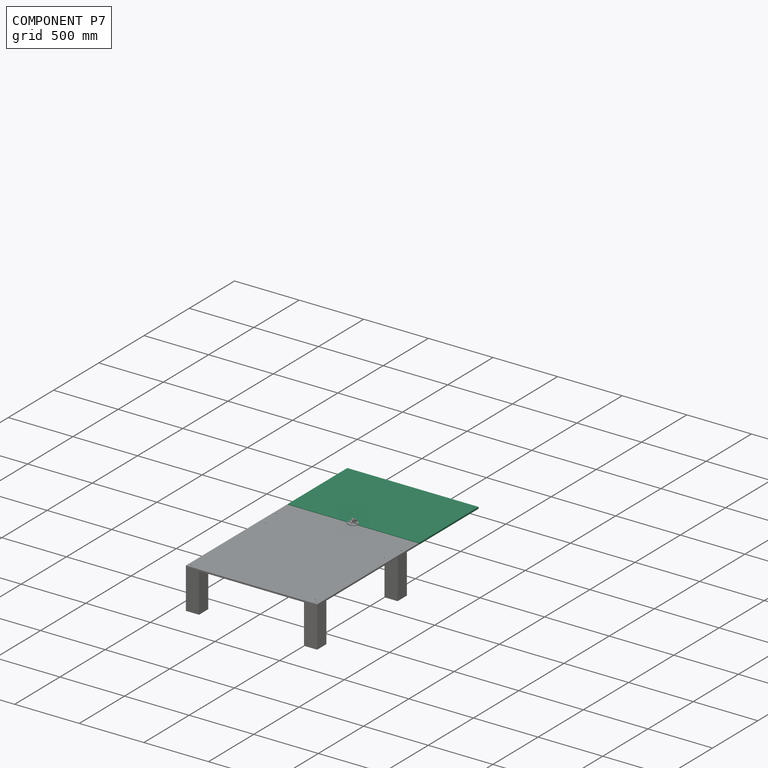
[diagram: component P7 — assembled]
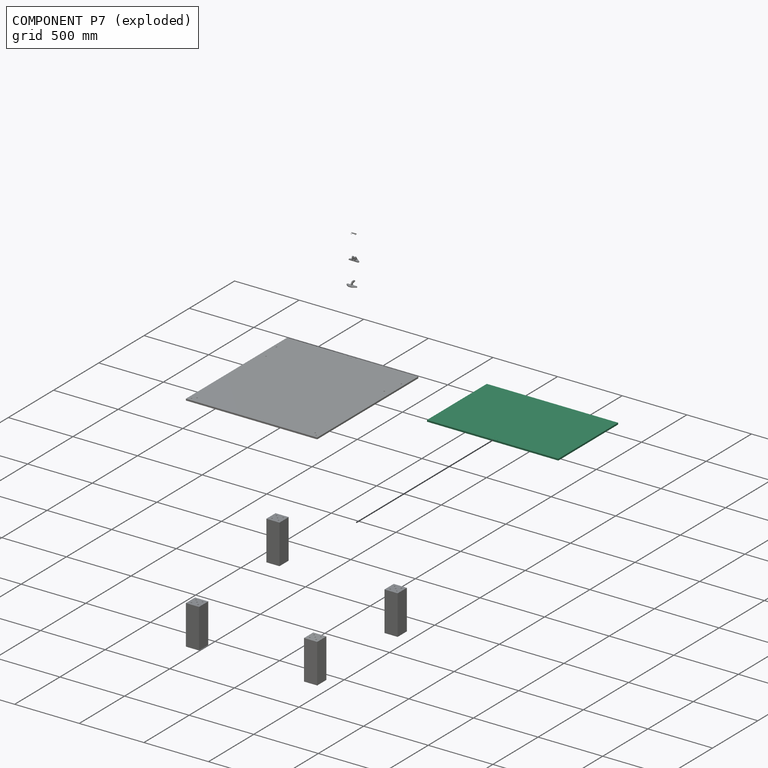
[diagram: component P7 — exploded]
COMPONENT P7 — recipe-attached (CADFS 00644985, mesh-verified: the recipe's output STEP matches this component's geometry to below the mesh-comparison resolution (tessellation chordal tolerance ~1.82 mm)).
Held by: FASTENED mate "Fastened 2" to P4; PARALLEL mate "Parallel 1" to P0; FASTENED mate "Fastened 2" to P4; PARALLEL mate "Parallel 1" to P0.
Construction recipe (FeatureScript — the CAD program that rebuilds this solid; sketch coordinates are in the units given by the * unit suffixes, e.g. mm):

FeatureScript 1511;
import(path : "onshape/std/geometry.fs", version : "1511.0");
import(path : "onshape/std/common.fs", version : "1511.0");
const mm = millimeter;
const VERTEX = EntityType.VERTEX;
const EDGE = EntityType.EDGE;
const FACE = EntityType.FACE;
const BODY = EntityType.BODY;
function v(x, y){return vector(x, y);}
function OD(order){return orderDisambiguation(order);}
function OSD(set){return originalSetDisambiguation(set);}
function TD(topology){return topologyDisambiguation(topology);}
function TDD(query){return trueDependencyDisambiguation(query);}
function sQuery(a, b, c) {return sketchEntityQuery(a, b, c);}

annotation { "Feature Type Name" : "Feature", "Feature Type Description" : "" }
export const myFeature = defineFeature(function(context is Context, id is Id, definition is map)
    precondition{}
    {
        {
            var Q0;
            Q0=qCreatedBy(makeId("Top.planeOp"),FACE);
            var sketch = newSketch(context, id + "F0", { "sketchPlane" : qUnion([Q0])});
            skLineSegment(sketch, "E0.bottom", {"start": v(508, 330.2) * mm, "end": v(-508, 330.2) * mm});
            skLineSegment(sketch, "E0.top", {"start": v(508, -330.2) * mm, "end": v(-508, -330.2) * mm});
            skLineSegment(sketch, "E0.left", {"start": v(508, 330.2) * mm, "end": v(508, -330.2) * mm});
            skLineSegment(sketch, "E0.right", {"start": v(-508, 330.2) * mm, "end": v(-508, -330.2) * mm});
            skPoint(sketch, "E0.middle", {"position": v(0, 0) * mm});
            skSolve(sketch);
        }
        {
            var Q0;
            Q0=makeQuery(id+"F0.imprint","IMPRINT",FACE,{"disambiguationData":[TD([[makeQuery(id+"F0.imprint","IMPRINT",EDGE,{"derivedFrom":sQuery(id+"F0.wireOp",EDGE,"E0.bottom")}),1.0]])]});
            extrude(context, id + "F1", {"entities" : qUnion([Q0]), "depth" : 12.7 * mm, "offsetDistance" : 25.4 * mm});
        }
        {
            var Q0;
            Q0=makeQuery(id+"F1.opExtrude","CAP_FACE",FACE,{"disambiguationData":[OSD([sQuery(id+"F0.wireOp",EDGE,"E0.bottom"),sQuery(id+"F0.wireOp",EDGE,"E0.top"),sQuery(id+"F0.wireOp",EDGE,"E0.left"),sQuery(id+"F0.wireOp",EDGE,"E0.right")])],"isStart":false});
            var sketch = newSketch(context, id + "F2", { "sketchPlane" : qUnion([Q0])});
            skLineSegment(sketch, "E1.bottom", {"start": v(-508, -330.2) * mm, "end": v(0, -330.2) * mm});
            skLineSegment(sketch, "E1.top", {"start": v(-508, -323.85) * mm, "end": v(0, -323.85) * mm});
            skLineSegment(sketch, "E1.left", {"start": v(-508, -330.2) * mm, "end": v(-508, -323.85) * mm});
            skLineSegment(sketch, "E1.right", {"start": v(0, -330.2) * mm, "end": v(0, -323.85) * mm});
            skLineSegment(sketch, "E2.bottom", {"start": v(30.56, -320.68) * mm, "end": v(-30.56, -320.68) * mm});
            skLineSegment(sketch, "E2.top", {"start": v(30.56, -327.03) * mm, "end": v(-30.56, -327.03) * mm});
            skLineSegment(sketch, "E2.left", {"start": v(30.56, -320.68) * mm, "end": v(30.56, -327.03) * mm});
            skLineSegment(sketch, "E2.right", {"start": v(-30.56, -320.68) * mm, "end": v(-30.56, -327.03) * mm});
            skPoint(sketch, "E2.middle", {"position": v(0, -323.85) * mm});
            skCircle(sketch, "E3", {"center": v(-30.56, -320.68) * mm, "radius": 2.38 * mm});
            skCircle(sketch, "E4", {"center": v(30.56, -320.68) * mm, "radius": 2.38 * mm});
            skLineSegment(sketch, "E5", {"start": v(-30.56, -320.68) * mm, "end": v(-30.56, -306.78) * mm});
            skLineSegment(sketch, "E6", {"start": v(-30.56, -306.78) * mm, "end": v(0, -306.78) * mm});
            skCircle(sketch, "E7", {"center": v(0, -306.78) * mm, "radius": 2.38 * mm});
            skSolve(sketch);
        }
        {
            var Q0;
            Q0=makeQuery(id+"F2.imprint","IMPRINT",FACE,{"disambiguationData":[TD([[makeQuery(id+"F2.imprint","IMPRINT",EDGE,{"derivedFrom":sQuery(id+"F2.wireOp",EDGE,"E7")}),1.0]])]});
            var Q1;
            {var subQ0=sQuery(id+"F2.wireOp",EDGE,"E2.left");var subQ1=sQuery(id+"F2.wireOp",EDGE,"E2.bottom");var subQ2=makeQuery(id+"F2.imprint","INTERSECT",VERTEX,{"derivedFrom":[subQ1,subQ0]});Q1=makeQuery(id+"F2.imprint","IMPRINT",FACE,{"disambiguationData":[TD([[makeQuery(id+"F2.imprint","IMPRINT",EDGE,{"disambiguationData":[TD([[subQ2,-1.0]])],"derivedFrom":subQ1}),1.0]])]});}
            var Q2;
            {var subQ0=sQuery(id+"F2.wireOp",EDGE,"E2.left");var subQ1=sQuery(id+"F2.wireOp",EDGE,"E2.bottom");var subQ2=makeQuery(id+"F2.imprint","INTERSECT",VERTEX,{"derivedFrom":[subQ1,subQ0]});Q2=makeQuery(id+"F2.imprint","IMPRINT",FACE,{"disambiguationData":[TD([[makeQuery(id+"F2.imprint","IMPRINT",EDGE,{"disambiguationData":[TD([[subQ2,-1.0]])],"derivedFrom":subQ1}),-1.0]])]});}
            var Q3;
            {var subQ1=sQuery(id+"F2.wireOp",EDGE,"E2.bottom");var subQ3=sQuery(id+"F2.wireOp",EDGE,"E3");var subQ4=makeQuery(id+"F2.imprint","INTERSECT",VERTEX,{"derivedFrom":[subQ1,subQ3]});Q3=makeQuery(id+"F2.imprint","IMPRINT",FACE,{"disambiguationData":[TD([[makeQuery(id+"F2.imprint","IMPRINT",EDGE,{"disambiguationData":[TD([[subQ4,1.0]])],"derivedFrom":subQ3}),1.0]])]});}
            var Q4;
            {var subQ0=sQuery(id+"F2.wireOp",EDGE,"E5");var subQ3=sQuery(id+"F2.wireOp",EDGE,"E3");var subQ5=makeQuery(id+"F2.imprint","INTERSECT",VERTEX,{"derivedFrom":[subQ3,subQ0]});Q4=makeQuery(id+"F2.imprint","IMPRINT",FACE,{"disambiguationData":[TD([[makeQuery(id+"F2.imprint","IMPRINT",EDGE,{"disambiguationData":[TD([[subQ5,1.0]])],"derivedFrom":subQ3}),1.0]])]});}
            var Q5;
            {var subQ0=sQuery(id+"F2.wireOp",EDGE,"E5");var subQ3=sQuery(id+"F2.wireOp",EDGE,"E3");var subQ5=makeQuery(id+"F2.imprint","INTERSECT",VERTEX,{"derivedFrom":[subQ3,subQ0]});Q5=makeQuery(id+"F2.imprint","IMPRINT",FACE,{"disambiguationData":[TD([[makeQuery(id+"F2.imprint","IMPRINT",EDGE,{"disambiguationData":[TD([[subQ5,-1.0]])],"derivedFrom":subQ3}),1.0]])]});}
            extrude(context, id + "F3", {"entities" : qUnion([Q0, Q1, Q2, Q3, Q4, Q5]), "operationType" : NewBodyOperationType.REMOVE, "oppositeDirection" : true, "depth" : 25.4 * mm, "offsetDistance" : 25.4 * mm});
        }
    });
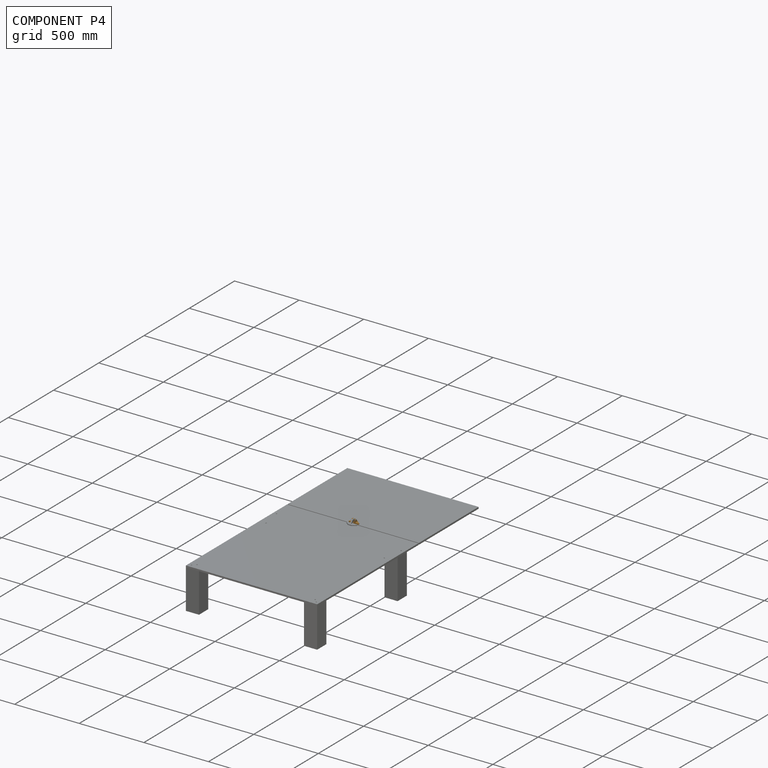
[diagram: component P4 — assembled]
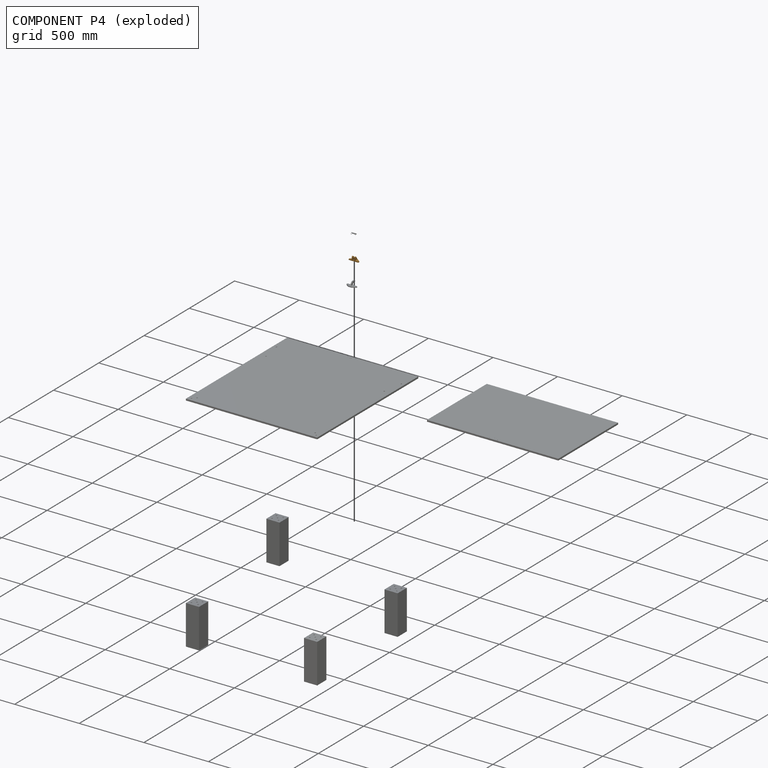
[diagram: component P4 — exploded]
COMPONENT P4 — geometry summary (no construction recipe available for this part):
  bounding box: 78.2 x 32.0 x 27.8 mm
  B-rep topology: 1 solid, 28 faces, 146 edges
  volume: 17216 mm^3 (25% of its bounding box)
  symmetry: mirror-symmetric across its x mid-plane
Held by: REVOLUTE mate "Revolute 1" to P9; PLANAR mate "Planar 1" to P5; FASTENED mate "Fastened 2" to P7; REVOLUTE mate "Revolute 1" to P9; FASTENED mate "Fastened 2" to P7; PLANAR mate "Planar 1" to P5.
